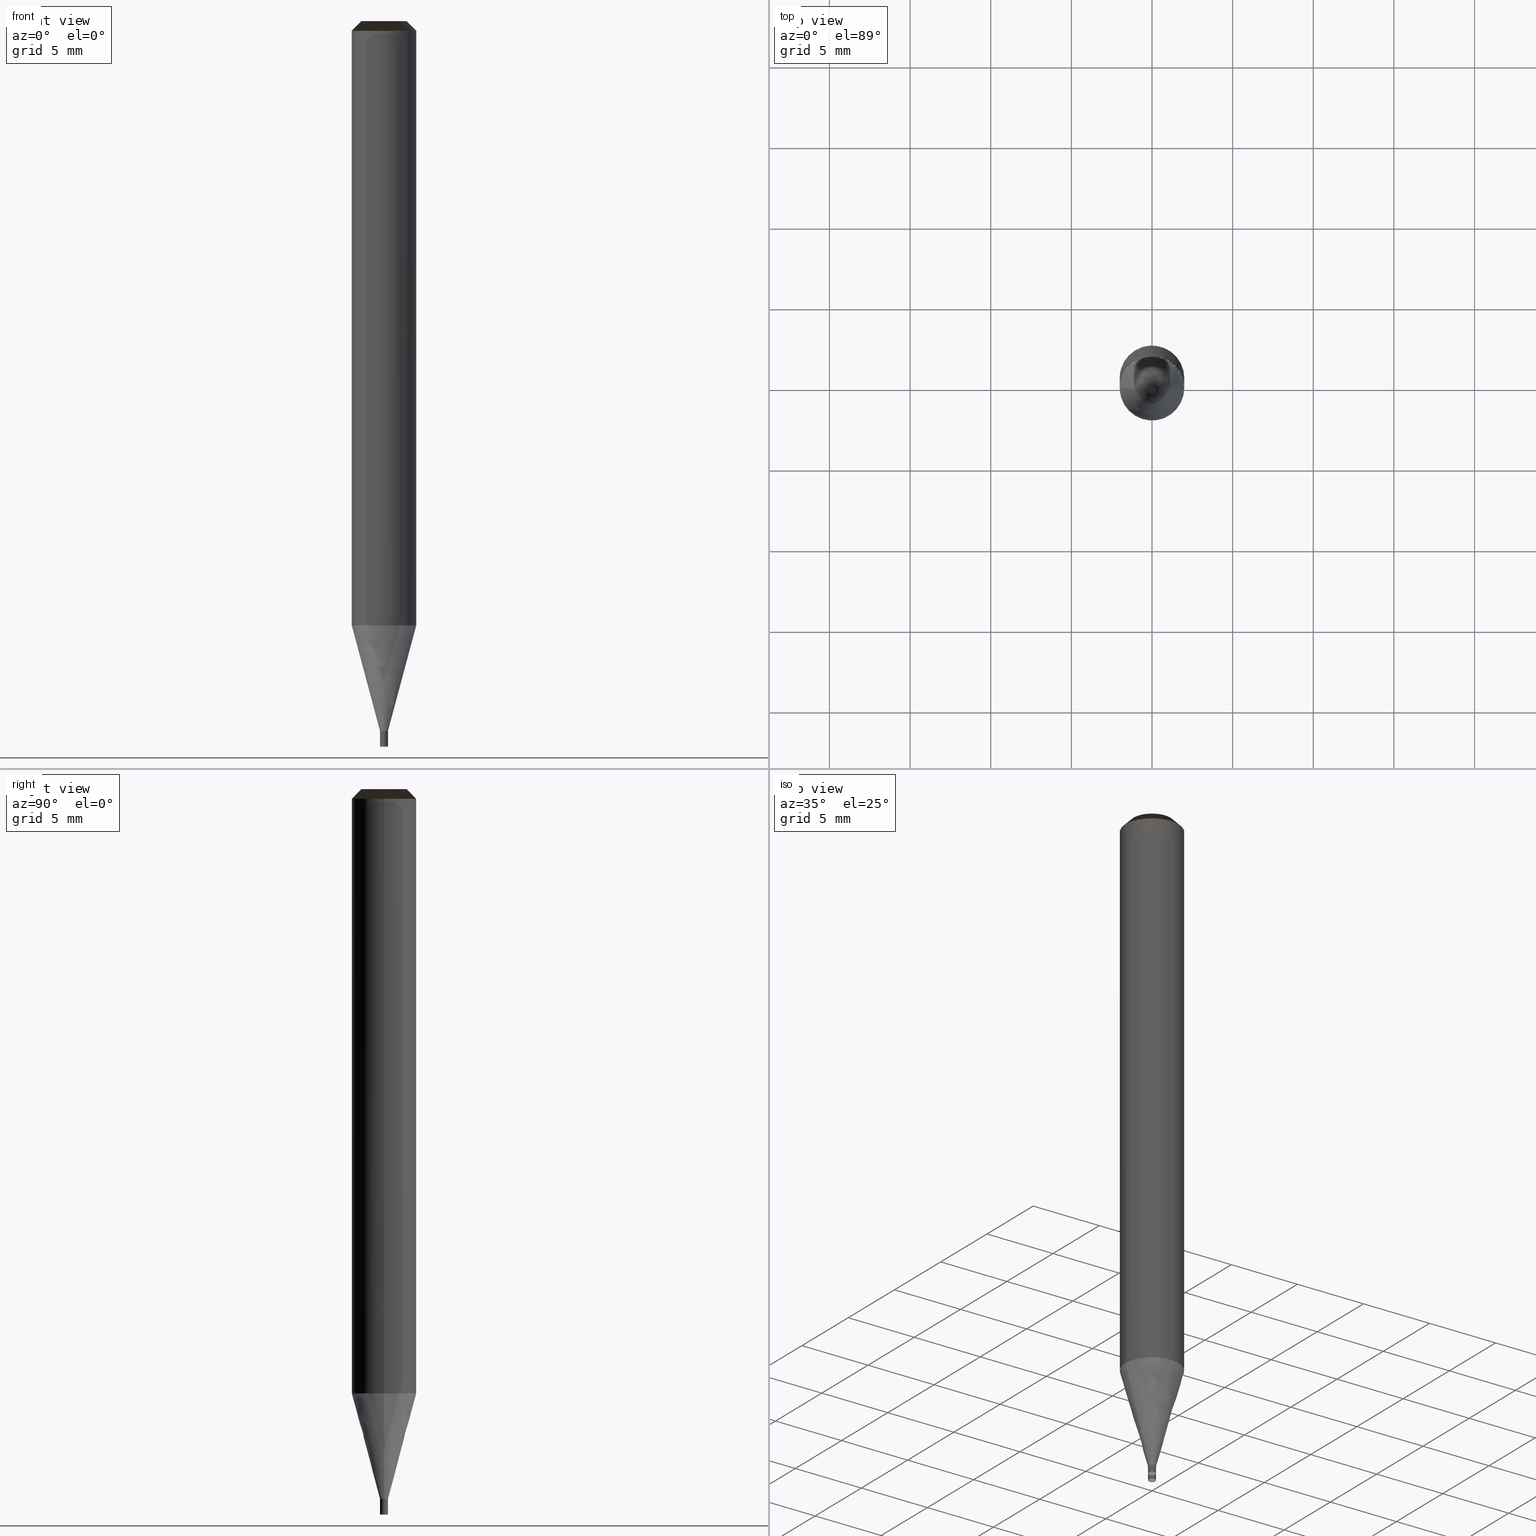
[diagram: canonical four-view strip — front | top / right | iso, engineering-drawing reading convention]
A machine part, canonical four-view strip (front | top / right | iso — engineering-drawing reading convention). The complete STEP part file that produces these views, byte-faithful:
ISO-10303-21;
HEADER;
/* Generated by ISBE GmbH (www.isbe.de) */
/* OPTION: using custom schema-name function */

FILE_DESCRIPTION(
/* description */ (''),
/* implementation_level */ '2;1');

FILE_NAME(
/*name*/ 'SHRN-2005-R0005-010-STH',
/*time_stamp*/'2023-9-18T8:7:38',
/*author*/ ('ISBE GmbH'),
/*organization*/ ('ISBE GmbH'),
/*preprocessor_version*/ 'STEP IO v1.0',
/*originating_system*/ '',
/*authorisation*/ '');

FILE_SCHEMA (('AUTOMOTIVE_DESIGN'));
ENDSEC;

DATA;
#10=SHAPE_DEFINITION_REPRESENTATION(#11,#57);
#11=PRODUCT_DEFINITION_SHAPE('Document','',#13);
#12=PRODUCT_DEFINITION_CONTEXT('3D Mechanical Parts',#17,'design');
#13=PRODUCT_DEFINITION('A','First version',#14,#12);
#14=PRODUCT_DEFINITION_FORMATION_WITH_SPECIFIED_SOURCE('A','First version',#19,.MADE.);
#15=PRODUCT_RELATED_PRODUCT_CATEGORY('tool','tool',(#19));
#16=APPLICATION_PROTOCOL_DEFINITION('Draft International Standard', 'automotive_design',1999,#17);
#17=APPLICATION_CONTEXT('data for automotive mechanical design processes');
#18=PRODUCT_CONTEXT('3D Mechanical Parts',#17,'mechanical');
#19=PRODUCT('Document','Document','ISBE converted to STEP',(#18));
#20=(
LENGTH_UNIT()
NAMED_UNIT(*)
SI_UNIT(.MILLI.,.METRE.)
);
#21=(
NAMED_UNIT(*)
PLANE_ANGLE_UNIT()
SI_UNIT($,.RADIAN.)
);
#22=DIMENSIONAL_EXPONENTS(0.,0.,0.,0.,0.,0.,0.);
#23=PLANE_ANGLE_MEASURE_WITH_UNIT(PLANE_ANGLE_MEASURE(0.01745329252),#21);
#24=(
CONVERSION_BASED_UNIT('DEGREES',#23)
NAMED_UNIT(#22)
PLANE_ANGLE_UNIT()
);
#25=(
NAMED_UNIT(*)
SI_UNIT($,.STERADIAN.)
SOLID_ANGLE_UNIT()
);
#26=UNCERTAINTY_MEASURE_WITH_UNIT(LENGTH_MEASURE(0.001),#20, 'DISTANCE_ACCURACY_VALUE', 'Maximum model space distance between geometric entities at asserted connectivities');
#27=(
GEOMETRIC_REPRESENTATION_CONTEXT(3)
GLOBAL_UNCERTAINTY_ASSIGNED_CONTEXT((#26))
GLOBAL_UNIT_ASSIGNED_CONTEXT((#25,#24,#20))
REPRESENTATION_CONTEXT('ID1','3D')
);
#28=CARTESIAN_POINT('',(0.0,0.0,0.0));
#29=DIRECTION('',(1.0,0.0,0.0));
#30=DIRECTION('',(0.0,0.0,1.0));
#31=AXIS2_PLACEMENT_3D('',#28,#30,#29);
#32=CARTESIAN_POINT('',(0.0,0.0,0.0));
#33=DIRECTION('',(1.0,0.0,0.0));
#34=DIRECTION('',(0.0,0.0,1.0));
#35=AXIS2_PLACEMENT_3D('',#32,#34,#33);
#36=CARTESIAN_POINT('',(0.0,0.0,0.0));
#37=DIRECTION('',(1.0,0.0,0.0));
#38=DIRECTION('',(0.0,0.0,1.0));
#39=AXIS2_PLACEMENT_3D('',#36,#38,#37);
#40=CARTESIAN_POINT('',(0.0,0.0,0.0));
#41=DIRECTION('',(0.0,0.0,1.0));
#42=DIRECTION('',(1.0,0.0,0.0));
#43=AXIS2_PLACEMENT_3D('MCS',#40,#42,#41);
#44=CARTESIAN_POINT('',(0.0,0.0,37.469));
#45=DIRECTION('',(0.0,0.0,1.0));
#46=DIRECTION('',(1.0,0.0,0.0));
#47=AXIS2_PLACEMENT_3D('PCS',#44,#46,#45);
#48=CARTESIAN_POINT('',(0.0,0.0,-7.531));
#49=DIRECTION('',(0.0,0.0,1.0));
#50=DIRECTION('',(1.0,0.0,0.0));
#51=AXIS2_PLACEMENT_3D('CIP',#48,#50,#49);
#52=CARTESIAN_POINT('',(0.0,-0.25,-7.531));
#53=DIRECTION('',(0.0,0.0,1.0));
#54=DIRECTION('',(1.0,0.0,0.0));
#55=AXIS2_PLACEMENT_3D('CRP',#52,#54,#53);
#57=SHAPE_REPRESENTATION('Document',(#31,#35,#39,#43,#47,#51,#55),#27);
#58=DIRECTION('',(1.0,0.0,0.0));
#59=DIRECTION('',(0.0,0.0,1.0));
#60=CARTESIAN_POINT('',(-0.002499874997,-0.000025,-7.531));
#61=CARTESIAN_POINT('',(-0.002384914871,-0.011520437733,-7.531));
#62=CARTESIAN_POINT('',(-0.002265912774,-0.023420052461,-7.531));
#63=CARTESIAN_POINT('',(-0.00214782035,-0.035228704322,-7.531));
#64=CARTESIAN_POINT('',(-0.002029951293,-0.047015020682,-7.531));
#65=CARTESIAN_POINT('',(-0.001912171193,-0.058792441808,-7.531));
#66=CARTESIAN_POINT('',(-0.001794435491,-0.070565423284,-7.531));
#67=CARTESIAN_POINT('',(-0.001676725137,-0.082335870149,-7.531));
#68=CARTESIAN_POINT('',(-0.001559030616,-0.094104733735,-7.531));
#69=CARTESIAN_POINT('',(-0.001441346647,-0.105872542164,-7.531));
#70=CARTESIAN_POINT('',(-0.001323670064,-0.117639612152,-7.531));
#71=CARTESIAN_POINT('',(-0.00120599885,-0.129406145183,-7.531));
#72=CARTESIAN_POINT('',(-0.001088331663,-0.141172275543,-7.531));
#73=CARTESIAN_POINT('',(-0.000970667573,-0.152938096185,-7.531));
#74=CARTESIAN_POINT('',(-0.000853005916,-0.164703673494,-7.531));
#75=CARTESIAN_POINT('',(-0.000735346207,-0.176469056149,-7.531));
#76=CARTESIAN_POINT('',(-0.000617688079,-0.188234280653,-7.531));
#77=CARTESIAN_POINT('',(-0.000500031253,-0.199999374921,-7.531));
#78=CARTESIAN_POINT('',(-0.00043863203,-0.202706470857,-7.530926670693));
#79=CARTESIAN_POINT('',(-0.00030693055,-0.205405721604,-7.530706897858));
#80=CARTESIAN_POINT('',(-0.000102601358,-0.208089074533,-7.530341326127));
#81=CARTESIAN_POINT('',(0.000176403814,-0.210748448182,-7.529831027786));
#82=CARTESIAN_POINT('',(0.000531818639,-0.213375754174,-7.529177499626));
#83=CARTESIAN_POINT('',(0.000965026704,-0.215962920415,-7.528382658559));
#84=CARTESIAN_POINT('',(0.001477028398,-0.218501915619,-7.527448835991));
#85=CARTESIAN_POINT('',(0.002068410632,-0.22098477516,-7.526378770984));
#86=CARTESIAN_POINT('',(0.002739319812,-0.223403628237,-7.525175602222));
#87=CARTESIAN_POINT('',(0.003489438453,-0.225750726271,-7.523842858808));
#88=CARTESIAN_POINT('',(0.004317965816,-0.228018472463,-7.522384449908));
#89=CARTESIAN_POINT('',(0.00522360287,-0.230199452332,-7.520804653285));
#90=CARTESIAN_POINT('',(0.00620454187,-0.232286465082,-7.519108102756));
#91=CARTESIAN_POINT('',(0.007258460776,-0.23427255556,-7.517299774596));
#92=CARTESIAN_POINT('',(0.008382522693,-0.236151046552,-7.515384972943));
#93=CARTESIAN_POINT('',(0.009573380455,-0.237915571127,-7.513369314239));
#94=CARTESIAN_POINT('',(0.010827186401,-0.239560104717,-7.51125871076));
#95=CARTESIAN_POINT('',(0.012139607364,-0.241078996577,-7.509059353268));
#96=CARTESIAN_POINT('',(0.013505844792,-0.242467000292,-7.506777692859));
#97=CARTESIAN_POINT('',(0.01492065987,-0.243719302948,-7.504420422035));
#98=CARTESIAN_POINT('',(0.016378403468,-0.244831552601,-7.501994455078));
#99=CARTESIAN_POINT('',(0.017873050643,-0.24579988369,-7.499506907767));
#100=CARTESIAN_POINT('',(0.019398239382,-0.246620940037,-7.496965076507));
#101=CARTESIAN_POINT('',(0.020947313227,-0.247291895114,-7.494376416926));
#102=CARTESIAN_POINT('',(0.022513367328,-0.247810469271,-7.491748522011));
#103=CARTESIAN_POINT('',(0.024089297489,-0.248174943661,-7.489089099828));
#104=CARTESIAN_POINT('',(0.025667851649,-0.24838417065,-7.486405950921));
#105=CARTESIAN_POINT('',(0.027241683294,-0.24843758052,-7.483706945429));
#106=CARTESIAN_POINT('',(0.028803406183,-0.248335184362,-7.481));
#107=CARTESIAN_POINT('',(0.071170607589,-0.239655470656,-7.406));
#108=CARTESIAN_POINT('',(0.111408023228,-0.223804049026,-7.331));
#109=CARTESIAN_POINT('',(0.14831154542,-0.201255274453,-7.256));
#110=CARTESIAN_POINT('',(0.180776833499,-0.172683920705,-7.181));
#111=CARTESIAN_POINT('',(0.207832361284,-0.138944987686,-7.106));
#112=CARTESIAN_POINT('',(0.228668490079,-0.101048115496,-7.031));
#113=CARTESIAN_POINT('',(0.002499874997,0.000025,-7.531));
#114=CARTESIAN_POINT('',(0.002384914871,0.011520437733,-7.531));
#115=CARTESIAN_POINT('',(0.002265912774,0.023420052461,-7.531));
#116=CARTESIAN_POINT('',(0.00214782035,0.035228704322,-7.531));
#117=CARTESIAN_POINT('',(0.002029951293,0.047015020682,-7.531));
#118=CARTESIAN_POINT('',(0.001912171193,0.058792441808,-7.531));
#119=CARTESIAN_POINT('',(0.001794435491,0.070565423284,-7.531));
#120=CARTESIAN_POINT('',(0.001676725137,0.082335870149,-7.531));
#121=CARTESIAN_POINT('',(0.001559030616,0.094104733735,-7.531));
#122=CARTESIAN_POINT('',(0.001441346647,0.105872542164,-7.531));
#123=CARTESIAN_POINT('',(0.001323670064,0.117639612152,-7.531));
#124=CARTESIAN_POINT('',(0.00120599885,0.129406145183,-7.531));
#125=CARTESIAN_POINT('',(0.001088331663,0.141172275543,-7.531));
#126=CARTESIAN_POINT('',(0.000970667573,0.152938096185,-7.531));
#127=CARTESIAN_POINT('',(0.000853005916,0.164703673494,-7.531));
#128=CARTESIAN_POINT('',(0.000735346207,0.176469056149,-7.531));
#129=CARTESIAN_POINT('',(0.000617688079,0.188234280653,-7.531));
#130=CARTESIAN_POINT('',(0.000500031253,0.199999374921,-7.531));
#131=CARTESIAN_POINT('',(0.00043863203,0.202706470857,-7.530926670693));
#132=CARTESIAN_POINT('',(0.00030693055,0.205405721604,-7.530706897858));
#133=CARTESIAN_POINT('',(0.000102601358,0.208089074533,-7.530341326127));
#134=CARTESIAN_POINT('',(-0.000176403814,0.210748448182,-7.529831027786));
#135=CARTESIAN_POINT('',(-0.000531818639,0.213375754174,-7.529177499626));
#136=CARTESIAN_POINT('',(-0.000965026704,0.215962920415,-7.528382658559));
#137=CARTESIAN_POINT('',(-0.001477028398,0.218501915619,-7.527448835991));
#138=CARTESIAN_POINT('',(-0.002068410632,0.22098477516,-7.526378770984));
#139=CARTESIAN_POINT('',(-0.002739319812,0.223403628237,-7.525175602222));
#140=CARTESIAN_POINT('',(-0.003489438453,0.225750726271,-7.523842858808));
#141=CARTESIAN_POINT('',(-0.004317965816,0.228018472463,-7.522384449908));
#142=CARTESIAN_POINT('',(-0.00522360287,0.230199452332,-7.520804653285));
#143=CARTESIAN_POINT('',(-0.00620454187,0.232286465082,-7.519108102756));
#144=CARTESIAN_POINT('',(-0.007258460776,0.23427255556,-7.517299774596));
#145=CARTESIAN_POINT('',(-0.008382522693,0.236151046552,-7.515384972943));
#146=CARTESIAN_POINT('',(-0.009573380455,0.237915571127,-7.513369314239));
#147=CARTESIAN_POINT('',(-0.010827186401,0.239560104717,-7.51125871076));
#148=CARTESIAN_POINT('',(-0.012139607364,0.241078996577,-7.509059353268));
#149=CARTESIAN_POINT('',(-0.013505844792,0.242467000292,-7.506777692859));
#150=CARTESIAN_POINT('',(-0.01492065987,0.243719302948,-7.504420422035));
#151=CARTESIAN_POINT('',(-0.016378403468,0.244831552601,-7.501994455078));
#152=CARTESIAN_POINT('',(-0.017873050643,0.24579988369,-7.499506907767));
#153=CARTESIAN_POINT('',(-0.019398239382,0.246620940037,-7.496965076507));
#154=CARTESIAN_POINT('',(-0.020947313227,0.247291895114,-7.494376416926));
#155=CARTESIAN_POINT('',(-0.022513367328,0.247810469271,-7.491748522011));
#156=CARTESIAN_POINT('',(-0.024089297489,0.248174943661,-7.489089099828));
#157=CARTESIAN_POINT('',(-0.025667851649,0.24838417065,-7.486405950921));
#158=CARTESIAN_POINT('',(-0.027241683294,0.24843758052,-7.483706945429));
#159=CARTESIAN_POINT('',(-0.028803406183,0.248335184362,-7.481));
#160=CARTESIAN_POINT('',(-0.071170607589,0.239655470656,-7.406));
#161=CARTESIAN_POINT('',(-0.111408023228,0.223804049026,-7.331));
#162=CARTESIAN_POINT('',(-0.14831154542,0.201255274453,-7.256));
#163=CARTESIAN_POINT('',(-0.180776833499,0.172683920705,-7.181));
#164=CARTESIAN_POINT('',(-0.207832361284,0.138944987686,-7.106));
#165=CARTESIAN_POINT('',(-0.228668490079,0.101048115496,-7.031));
#166=CARTESIAN_POINT('',(0.0,0.0,-7.531));
#167=CARTESIAN_POINT('',(0.2,0.0,-7.531));
#168=CARTESIAN_POINT('',(0.2,0.2,-7.531));
#169=CARTESIAN_POINT('',(0.0,0.2,-7.531));
#170=CARTESIAN_POINT('',(-0.2,0.2,-7.531));
#171=CARTESIAN_POINT('',(-0.2,0.0,-7.531));
#172=CARTESIAN_POINT('',(0.220710678119,0.0,-7.531));
#173=CARTESIAN_POINT('',(0.220710678119,0.220710678119,-7.531));
#174=CARTESIAN_POINT('',(0.0,0.220710678119,-7.531));
#175=CARTESIAN_POINT('',(-0.220710678119,0.220710678119,-7.531));
#176=CARTESIAN_POINT('',(-0.220710678119,0.0,-7.531));
#177=CARTESIAN_POINT('',(0.235355339059,0.0,-7.516355339059));
#178=CARTESIAN_POINT('',(0.235355339059,0.235355339059,-7.516355339059));
#179=CARTESIAN_POINT('',(0.0,0.235355339059,-7.516355339059));
#180=CARTESIAN_POINT('',(-0.235355339059,0.235355339059,-7.516355339059));
#181=CARTESIAN_POINT('',(-0.235355339059,0.0,-7.516355339059));
#182=CARTESIAN_POINT('',(0.25,0.0,-7.501710678119));
#183=CARTESIAN_POINT('',(0.25,0.25,-7.501710678119));
#184=CARTESIAN_POINT('',(0.0,0.25,-7.501710678119));
#185=CARTESIAN_POINT('',(-0.25,0.25,-7.501710678119));
#186=CARTESIAN_POINT('',(-0.25,0.0,-7.501710678119));
#187=CARTESIAN_POINT('',(0.25,0.0,-7.481));
#188=CARTESIAN_POINT('',(0.25,0.25,-7.481));
#189=CARTESIAN_POINT('',(0.0,0.25,-7.481));
#190=CARTESIAN_POINT('',(-0.25,0.25,-7.481));
#191=CARTESIAN_POINT('',(-0.25,0.0,-7.481));
#192=CARTESIAN_POINT('',(0.25,0.0,-7.031));
#193=CARTESIAN_POINT('',(0.25,0.25,-7.031));
#194=CARTESIAN_POINT('',(0.0,0.25,-7.031));
#195=CARTESIAN_POINT('',(-0.25,0.25,-7.031));
#196=CARTESIAN_POINT('',(-0.25,0.0,-7.031));
#197=CARTESIAN_POINT('',(0.0,0.0,-7.031));
#198=CARTESIAN_POINT('',(-0.2,-0.2,-7.531));
#199=CARTESIAN_POINT('',(0.0,-0.2,-7.531));
#200=CARTESIAN_POINT('',(0.2,-0.2,-7.531));
#201=CARTESIAN_POINT('',(-0.220710678119,-0.220710678119,-7.531));
#202=CARTESIAN_POINT('',(0.0,-0.220710678119,-7.531));
#203=CARTESIAN_POINT('',(0.220710678119,-0.220710678119,-7.531));
#204=CARTESIAN_POINT('',(-0.235355339059,-0.235355339059,-7.516355339059));
#205=CARTESIAN_POINT('',(0.0,-0.235355339059,-7.516355339059));
#206=CARTESIAN_POINT('',(0.235355339059,-0.235355339059,-7.516355339059));
#207=CARTESIAN_POINT('',(-0.25,-0.25,-7.501710678119));
#208=CARTESIAN_POINT('',(0.0,-0.25,-7.501710678119));
#209=CARTESIAN_POINT('',(0.25,-0.25,-7.501710678119));
#210=CARTESIAN_POINT('',(-0.25,-0.25,-7.481));
#211=CARTESIAN_POINT('',(0.0,-0.25,-7.481));
#212=CARTESIAN_POINT('',(0.25,-0.25,-7.481));
#213=CARTESIAN_POINT('',(-0.25,-0.25,-7.031));
#214=CARTESIAN_POINT('',(0.0,-0.25,-7.031));
#215=CARTESIAN_POINT('',(0.25,-0.25,-7.031));
#216=CARTESIAN_POINT('',(0.25,0.0,-6.531088913246));
#217=CARTESIAN_POINT('',(0.25,0.25,-6.531088913246));
#218=CARTESIAN_POINT('',(0.0,0.25,-6.531088913246));
#219=CARTESIAN_POINT('',(-0.25,0.25,-6.531088913246));
#220=CARTESIAN_POINT('',(-0.25,0.0,-6.531088913246));
#221=CARTESIAN_POINT('',(2.0,0.0,0.0));
#222=CARTESIAN_POINT('',(2.0,2.0,0.0));
#223=CARTESIAN_POINT('',(0.0,2.0,0.0));
#224=CARTESIAN_POINT('',(-2.0,2.0,0.0));
#225=CARTESIAN_POINT('',(-2.0,0.0,0.0));
#226=CARTESIAN_POINT('',(2.0,0.0,36.869));
#227=CARTESIAN_POINT('',(2.0,2.0,36.869));
#228=CARTESIAN_POINT('',(0.0,2.0,36.869));
#229=CARTESIAN_POINT('',(-2.0,2.0,36.869));
#230=CARTESIAN_POINT('',(-2.0,0.0,36.869));
#231=CARTESIAN_POINT('',(1.4,0.0,37.469));
#232=CARTESIAN_POINT('',(1.4,1.4,37.469));
#233=CARTESIAN_POINT('',(0.0,1.4,37.469));
#234=CARTESIAN_POINT('',(-1.4,1.4,37.469));
#235=CARTESIAN_POINT('',(-1.4,0.0,37.469));
#236=CARTESIAN_POINT('',(0.0,0.0,37.469));
#237=CARTESIAN_POINT('',(-0.25,-0.25,-6.531088913246));
#238=CARTESIAN_POINT('',(0.0,-0.25,-6.531088913246));
#239=CARTESIAN_POINT('',(0.25,-0.25,-6.531088913246));
#240=CARTESIAN_POINT('',(-2.0,-2.0,0.0));
#241=CARTESIAN_POINT('',(0.0,-2.0,0.0));
#242=CARTESIAN_POINT('',(2.0,-2.0,0.0));
#243=CARTESIAN_POINT('',(-2.0,-2.0,36.869));
#244=CARTESIAN_POINT('',(0.0,-2.0,36.869));
#245=CARTESIAN_POINT('',(2.0,-2.0,36.869));
#246=CARTESIAN_POINT('',(-1.4,-1.4,37.469));
#247=CARTESIAN_POINT('',(0.0,-1.4,37.469));
#248=CARTESIAN_POINT('',(1.4,-1.4,37.469));
#249=(
BOUNDED_CURVE()
B_SPLINE_CURVE(1,(#60,#61,#62,#63,#64,#65,#66,#67,#68,#69,#70,#71,#72,#73,#74,#75,#76,#77,#78,#79,#80,#81,#82,#83,#84,#85,#86,#87,#88,#89,#90,#91,#92,#93,#94,#95,#96,#97,#98,#99,#100,#101,#102,#103,#104,#105,#106,#107,#108,#109,#110,#111,#112),.UNSPECIFIED.,.F.,.F.)
B_SPLINE_CURVE_WITH_KNOTS((2,1,1,1,1,1,1,1,1,1,1,1,1,1,1,1,1,1,1,1,1,1,1,1,1,1,1,1,1,1,1,1,1,1,1,1,1,1,1,1,1,1,1,1,1,1,1,1,1,1,1,1,2),
(0.0,0.01429975865,0.029102293586,0.043791675192,0.058453272535,0.073103804645,0.087748814048,0.102390670521,0.117030557472,0.131669131859,0.146306787664,0.160943775519,0.175580262471,0.19021636415,0.204852163135,0.219487719979,0.234123080091,0.248758278196,0.252127704741,0.255500363578,0.258878563436,0.262264709731,0.265661267125,0.269070717988,0.272495517771,0.275938048463,0.279400571426,0.282885180941,0.286393759762,0.289927937916,0.293489055831,0.297078132696,0.300695840776,0.304342486177,0.308017996349,0.311721914447,0.315453400472,0.319211238989,0.322993853085,0.326799324173,0.330625417124,0.334469610218,0.338329129334,0.342200985794,0.34608201726,0.349968931075,0.35385834945,0.461548624542,0.569238899633,0.676929174725,0.784619449817,0.892309724908,1.0),.UNSPECIFIED.)
CURVE()
GEOMETRIC_REPRESENTATION_ITEM()
RATIONAL_B_SPLINE_CURVE((1.0,1.0,1.0,1.0,1.0,1.0,1.0,1.0,1.0,1.0,1.0,1.0,1.0,1.0,1.0,1.0,1.0,1.0,1.0,1.0,1.0,1.0,1.0,1.0,1.0,1.0,1.0,1.0,1.0,1.0,1.0,1.0,1.0,1.0,1.0,1.0,1.0,1.0,1.0,1.0,1.0,1.0,1.0,1.0,1.0,1.0,1.0,1.0,1.0,1.0,1.0,1.0,1.0))
REPRESENTATION_ITEM('')
);
#250=(
BOUNDED_CURVE()
B_SPLINE_CURVE(1,(#113,#114,#115,#116,#117,#118,#119,#120,#121,#122,#123,#124,#125,#126,#127,#128,#129,#130,#131,#132,#133,#134,#135,#136,#137,#138,#139,#140,#141,#142,#143,#144,#145,#146,#147,#148,#149,#150,#151,#152,#153,#154,#155,#156,#157,#158,#159,#160,#161,#162,#163,#164,#165),.UNSPECIFIED.,.F.,.F.)
B_SPLINE_CURVE_WITH_KNOTS((2,1,1,1,1,1,1,1,1,1,1,1,1,1,1,1,1,1,1,1,1,1,1,1,1,1,1,1,1,1,1,1,1,1,1,1,1,1,1,1,1,1,1,1,1,1,1,1,1,1,1,1,2),
(0.0,0.01429975865,0.029102293586,0.043791675192,0.058453272535,0.073103804645,0.087748814048,0.102390670521,0.117030557472,0.131669131859,0.146306787664,0.160943775519,0.175580262471,0.19021636415,0.204852163135,0.219487719979,0.234123080091,0.248758278196,0.252127704741,0.255500363578,0.258878563436,0.262264709731,0.265661267125,0.269070717988,0.272495517771,0.275938048463,0.279400571426,0.282885180941,0.286393759762,0.289927937916,0.293489055831,0.297078132696,0.300695840776,0.304342486177,0.308017996349,0.311721914447,0.315453400472,0.319211238989,0.322993853085,0.326799324173,0.330625417124,0.334469610218,0.338329129334,0.342200985794,0.34608201726,0.349968931075,0.35385834945,0.461548624542,0.569238899633,0.676929174725,0.784619449817,0.892309724908,1.0),.UNSPECIFIED.)
CURVE()
GEOMETRIC_REPRESENTATION_ITEM()
RATIONAL_B_SPLINE_CURVE((1.0,1.0,1.0,1.0,1.0,1.0,1.0,1.0,1.0,1.0,1.0,1.0,1.0,1.0,1.0,1.0,1.0,1.0,1.0,1.0,1.0,1.0,1.0,1.0,1.0,1.0,1.0,1.0,1.0,1.0,1.0,1.0,1.0,1.0,1.0,1.0,1.0,1.0,1.0,1.0,1.0,1.0,1.0,1.0,1.0,1.0,1.0,1.0,1.0,1.0,1.0,1.0,1.0))
REPRESENTATION_ITEM('')
);
#251=SHAPE_REPRESENTATION_RELATIONSHIP('','',#57,#252);
#252=GEOMETRICALLY_BOUNDED_WIREFRAME_SHAPE_REPRESENTATION('Curves',(#253,#31),#27);
#253=GEOMETRIC_CURVE_SET('CurveSet',(#249,#250));
#254=(
BOUNDED_SURFACE()
B_SPLINE_SURFACE(1,2,(
(#166,#166,#166,#166,#166),
(#167,#168,#169,#170,#171)
), .UNSPECIFIED.,.F.,.F.,.F.)
B_SPLINE_SURFACE_WITH_KNOTS((2,2),(3,2,3),(
0.0,1.0),(
0.0,0.5,1.0), .UNSPECIFIED.)
GEOMETRIC_REPRESENTATION_ITEM()
RATIONAL_B_SPLINE_SURFACE(((1.0,0.707106781187,1.0,0.707106781187,1.0),
(1.0,0.707106781187,1.0,0.707106781187,1.0)
))
REPRESENTATION_ITEM('')
SURFACE()
);
#255=(
BOUNDED_CURVE()
B_SPLINE_CURVE(2,(#167,#168,#169,#170,#171),.UNSPECIFIED.,.F.,.F.)
B_SPLINE_CURVE_WITH_KNOTS((3,2,3),
(0.0,0.5,1.0),.UNSPECIFIED.)
CURVE()
GEOMETRIC_REPRESENTATION_ITEM()
RATIONAL_B_SPLINE_CURVE((1.0,0.707106781187,1.0,0.707106781187,1.0))
REPRESENTATION_ITEM('')
);
#256=(
BOUNDED_CURVE()
B_SPLINE_CURVE(1,(#171,#166),.UNSPECIFIED.,.F.,.F.)
B_SPLINE_CURVE_WITH_KNOTS((2,2),
(0.0,1.0),.UNSPECIFIED.)
CURVE()
GEOMETRIC_REPRESENTATION_ITEM()
RATIONAL_B_SPLINE_CURVE((1.0,1.0))
REPRESENTATION_ITEM('')
);
#257=(
BOUNDED_CURVE()
B_SPLINE_CURVE(1,(#166,#167),.UNSPECIFIED.,.F.,.F.)
B_SPLINE_CURVE_WITH_KNOTS((2,2),
(0.0,1.0),.UNSPECIFIED.)
CURVE()
GEOMETRIC_REPRESENTATION_ITEM()
RATIONAL_B_SPLINE_CURVE((1.0,1.0))
REPRESENTATION_ITEM('')
);
#258=VERTEX_POINT('',#166);
#259=VERTEX_POINT('',#167);
#260=VERTEX_POINT('',#171);
#261=EDGE_CURVE('',#259,#260,#255,.T.);
#262=EDGE_CURVE('',#260,#258,#256,.T.);
#263=EDGE_CURVE('',#258,#259,#257,.T.);
#264=ORIENTED_EDGE('',*,*,#261,.T.);
#265=ORIENTED_EDGE('',*,*,#262,.T.);
#266=ORIENTED_EDGE('',*,*,#263,.T.);
#267=EDGE_LOOP('',(#264,#265,#266));
#268=FACE_OUTER_BOUND('',#267,.T.);
#269=ADVANCED_FACE('',(#268),#254,.T.);
#270=(
BOUNDED_SURFACE()
B_SPLINE_SURFACE(2,2,(
(#167,#168,#169,#170,#171),
(#172,#173,#174,#175,#176),
(#177,#178,#179,#180,#181),
(#182,#183,#184,#185,#186),
(#187,#188,#189,#190,#191)
), .UNSPECIFIED.,.F.,.F.,.F.)
B_SPLINE_SURFACE_WITH_KNOTS((3,2,3),(3,2,3),(
0.0,0.5,1.0),(
0.0,0.5,1.0), .UNSPECIFIED.)
GEOMETRIC_REPRESENTATION_ITEM()
RATIONAL_B_SPLINE_SURFACE(((1.0,0.707106781187,1.0,0.707106781187,1.0),
(0.923879532511,0.653281482438,0.923879532511,0.653281482438,0.923879532511),
(1.0,0.707106781187,1.0,0.707106781187,1.0),
(0.923879532511,0.653281482438,0.923879532511,0.653281482438,0.923879532511),
(1.0,0.707106781187,1.0,0.707106781187,1.0)
))
REPRESENTATION_ITEM('')
SURFACE()
);
#271=(
BOUNDED_CURVE()
B_SPLINE_CURVE(2,(#187,#188,#189,#190,#191),.UNSPECIFIED.,.F.,.F.)
B_SPLINE_CURVE_WITH_KNOTS((3,2,3),
(0.0,0.5,1.0),.UNSPECIFIED.)
CURVE()
GEOMETRIC_REPRESENTATION_ITEM()
RATIONAL_B_SPLINE_CURVE((1.0,0.707106781187,1.0,0.707106781187,1.0))
REPRESENTATION_ITEM('')
);
#272=(
BOUNDED_CURVE()
B_SPLINE_CURVE(2,(#191,#186,#181,#176,#171),.UNSPECIFIED.,.F.,.F.)
B_SPLINE_CURVE_WITH_KNOTS((3,2,3),
(0.0,0.5,1.0),.UNSPECIFIED.)
CURVE()
GEOMETRIC_REPRESENTATION_ITEM()
RATIONAL_B_SPLINE_CURVE((1.0,0.923879532511,1.0,0.923879532511,1.0))
REPRESENTATION_ITEM('')
);
#273=(
BOUNDED_CURVE()
B_SPLINE_CURVE(2,(#171,#170,#169,#168,#167),.UNSPECIFIED.,.F.,.F.)
B_SPLINE_CURVE_WITH_KNOTS((3,2,3),
(0.0,0.5,1.0),.UNSPECIFIED.)
CURVE()
GEOMETRIC_REPRESENTATION_ITEM()
RATIONAL_B_SPLINE_CURVE((1.0,0.707106781187,1.0,0.707106781187,1.0))
REPRESENTATION_ITEM('')
);
#274=(
BOUNDED_CURVE()
B_SPLINE_CURVE(2,(#167,#172,#177,#182,#187),.UNSPECIFIED.,.F.,.F.)
B_SPLINE_CURVE_WITH_KNOTS((3,2,3),
(0.0,0.5,1.0),.UNSPECIFIED.)
CURVE()
GEOMETRIC_REPRESENTATION_ITEM()
RATIONAL_B_SPLINE_CURVE((1.0,0.923879532511,1.0,0.923879532511,1.0))
REPRESENTATION_ITEM('')
);
#275=VERTEX_POINT('',#167);
#276=VERTEX_POINT('',#171);
#277=VERTEX_POINT('',#187);
#278=VERTEX_POINT('',#191);
#279=EDGE_CURVE('',#277,#278,#271,.T.);
#280=EDGE_CURVE('',#278,#276,#272,.T.);
#281=EDGE_CURVE('',#276,#275,#273,.T.);
#282=EDGE_CURVE('',#275,#277,#274,.T.);
#283=ORIENTED_EDGE('',*,*,#279,.T.);
#284=ORIENTED_EDGE('',*,*,#280,.T.);
#285=ORIENTED_EDGE('',*,*,#281,.T.);
#286=ORIENTED_EDGE('',*,*,#282,.T.);
#287=EDGE_LOOP('',(#283,#284,#285,#286));
#288=FACE_OUTER_BOUND('',#287,.T.);
#289=ADVANCED_FACE('',(#288),#270,.T.);
#290=(
BOUNDED_SURFACE()
B_SPLINE_SURFACE(1,2,(
(#187,#188,#189,#190,#191),
(#192,#193,#194,#195,#196)
), .UNSPECIFIED.,.F.,.F.,.F.)
B_SPLINE_SURFACE_WITH_KNOTS((2,2),(3,2,3),(
0.0,1.0),(
0.0,0.5,1.0), .UNSPECIFIED.)
GEOMETRIC_REPRESENTATION_ITEM()
RATIONAL_B_SPLINE_SURFACE(((1.0,0.707106781187,1.0,0.707106781187,1.0),
(1.0,0.707106781187,1.0,0.707106781187,1.0)
))
REPRESENTATION_ITEM('')
SURFACE()
);
#291=(
BOUNDED_CURVE()
B_SPLINE_CURVE(2,(#192,#193,#194,#195,#196),.UNSPECIFIED.,.F.,.F.)
B_SPLINE_CURVE_WITH_KNOTS((3,2,3),
(0.0,0.5,1.0),.UNSPECIFIED.)
CURVE()
GEOMETRIC_REPRESENTATION_ITEM()
RATIONAL_B_SPLINE_CURVE((1.0,0.707106781187,1.0,0.707106781187,1.0))
REPRESENTATION_ITEM('')
);
#292=(
BOUNDED_CURVE()
B_SPLINE_CURVE(1,(#196,#191),.UNSPECIFIED.,.F.,.F.)
B_SPLINE_CURVE_WITH_KNOTS((2,2),
(0.0,1.0),.UNSPECIFIED.)
CURVE()
GEOMETRIC_REPRESENTATION_ITEM()
RATIONAL_B_SPLINE_CURVE((1.0,1.0))
REPRESENTATION_ITEM('')
);
#293=(
BOUNDED_CURVE()
B_SPLINE_CURVE(2,(#191,#190,#189,#188,#187),.UNSPECIFIED.,.F.,.F.)
B_SPLINE_CURVE_WITH_KNOTS((3,2,3),
(0.0,0.5,1.0),.UNSPECIFIED.)
CURVE()
GEOMETRIC_REPRESENTATION_ITEM()
RATIONAL_B_SPLINE_CURVE((1.0,0.707106781187,1.0,0.707106781187,1.0))
REPRESENTATION_ITEM('')
);
#294=(
BOUNDED_CURVE()
B_SPLINE_CURVE(1,(#187,#192),.UNSPECIFIED.,.F.,.F.)
B_SPLINE_CURVE_WITH_KNOTS((2,2),
(0.0,1.0),.UNSPECIFIED.)
CURVE()
GEOMETRIC_REPRESENTATION_ITEM()
RATIONAL_B_SPLINE_CURVE((1.0,1.0))
REPRESENTATION_ITEM('')
);
#295=VERTEX_POINT('',#187);
#296=VERTEX_POINT('',#191);
#297=VERTEX_POINT('',#192);
#298=VERTEX_POINT('',#196);
#299=EDGE_CURVE('',#297,#298,#291,.T.);
#300=EDGE_CURVE('',#298,#296,#292,.T.);
#301=EDGE_CURVE('',#296,#295,#293,.T.);
#302=EDGE_CURVE('',#295,#297,#294,.T.);
#303=ORIENTED_EDGE('',*,*,#299,.T.);
#304=ORIENTED_EDGE('',*,*,#300,.T.);
#305=ORIENTED_EDGE('',*,*,#301,.T.);
#306=ORIENTED_EDGE('',*,*,#302,.T.);
#307=EDGE_LOOP('',(#303,#304,#305,#306));
#308=FACE_OUTER_BOUND('',#307,.T.);
#309=ADVANCED_FACE('',(#308),#290,.T.);
#310=(
BOUNDED_SURFACE()
B_SPLINE_SURFACE(1,2,(
(#192,#193,#194,#195,#196),
(#197,#197,#197,#197,#197)
), .UNSPECIFIED.,.F.,.F.,.F.)
B_SPLINE_SURFACE_WITH_KNOTS((2,2),(3,2,3),(
0.0,1.0),(
0.0,0.5,1.0), .UNSPECIFIED.)
GEOMETRIC_REPRESENTATION_ITEM()
RATIONAL_B_SPLINE_SURFACE(((1.0,0.707106781187,1.0,0.707106781187,1.0),
(1.0,0.707106781187,1.0,0.707106781187,1.0)
))
REPRESENTATION_ITEM('')
SURFACE()
);
#311=(
BOUNDED_CURVE()
B_SPLINE_CURVE(1,(#197,#192),.UNSPECIFIED.,.F.,.F.)
B_SPLINE_CURVE_WITH_KNOTS((2,2),
(0.0,1.0),.UNSPECIFIED.)
CURVE()
GEOMETRIC_REPRESENTATION_ITEM()
RATIONAL_B_SPLINE_CURVE((1.0,1.0))
REPRESENTATION_ITEM('')
);
#312=(
BOUNDED_CURVE()
B_SPLINE_CURVE(2,(#192,#193,#194,#195,#196),.UNSPECIFIED.,.F.,.F.)
B_SPLINE_CURVE_WITH_KNOTS((3,2,3),
(0.0,0.5,1.0),.UNSPECIFIED.)
CURVE()
GEOMETRIC_REPRESENTATION_ITEM()
RATIONAL_B_SPLINE_CURVE((1.0,0.707106781187,1.0,0.707106781187,1.0))
REPRESENTATION_ITEM('')
);
#313=(
BOUNDED_CURVE()
B_SPLINE_CURVE(1,(#196,#197),.UNSPECIFIED.,.F.,.F.)
B_SPLINE_CURVE_WITH_KNOTS((2,2),
(0.0,1.0),.UNSPECIFIED.)
CURVE()
GEOMETRIC_REPRESENTATION_ITEM()
RATIONAL_B_SPLINE_CURVE((1.0,1.0))
REPRESENTATION_ITEM('')
);
#314=VERTEX_POINT('',#192);
#315=VERTEX_POINT('',#196);
#316=VERTEX_POINT('',#197);
#317=EDGE_CURVE('',#316,#314,#311,.T.);
#318=EDGE_CURVE('',#314,#315,#312,.T.);
#319=EDGE_CURVE('',#315,#316,#313,.T.);
#320=ORIENTED_EDGE('',*,*,#317,.T.);
#321=ORIENTED_EDGE('',*,*,#318,.T.);
#322=ORIENTED_EDGE('',*,*,#319,.T.);
#323=EDGE_LOOP('',(#320,#321,#322));
#324=FACE_OUTER_BOUND('',#323,.T.);
#325=ADVANCED_FACE('',(#324),#310,.T.);
#326=(
BOUNDED_SURFACE()
B_SPLINE_SURFACE(1,2,(
(#166,#166,#166,#166,#166),
(#171,#198,#199,#200,#167)
), .UNSPECIFIED.,.F.,.F.,.F.)
B_SPLINE_SURFACE_WITH_KNOTS((2,2),(3,2,3),(
0.0,1.0),(
0.0,0.5,1.0), .UNSPECIFIED.)
GEOMETRIC_REPRESENTATION_ITEM()
RATIONAL_B_SPLINE_SURFACE(((1.0,0.707106781187,1.0,0.707106781187,1.0),
(1.0,0.707106781187,1.0,0.707106781187,1.0)
))
REPRESENTATION_ITEM('')
SURFACE()
);
#327=(
BOUNDED_CURVE()
B_SPLINE_CURVE(1,(#171,#166),.UNSPECIFIED.,.F.,.F.)
B_SPLINE_CURVE_WITH_KNOTS((2,2),
(0.0,1.0),.UNSPECIFIED.)
CURVE()
GEOMETRIC_REPRESENTATION_ITEM()
RATIONAL_B_SPLINE_CURVE((1.0,1.0))
REPRESENTATION_ITEM('')
);
#328=(
BOUNDED_CURVE()
B_SPLINE_CURVE(1,(#166,#167),.UNSPECIFIED.,.F.,.F.)
B_SPLINE_CURVE_WITH_KNOTS((2,2),
(0.0,1.0),.UNSPECIFIED.)
CURVE()
GEOMETRIC_REPRESENTATION_ITEM()
RATIONAL_B_SPLINE_CURVE((1.0,1.0))
REPRESENTATION_ITEM('')
);
#329=(
BOUNDED_CURVE()
B_SPLINE_CURVE(2,(#167,#200,#199,#198,#171),.UNSPECIFIED.,.F.,.F.)
B_SPLINE_CURVE_WITH_KNOTS((3,2,3),
(0.0,0.5,1.0),.UNSPECIFIED.)
CURVE()
GEOMETRIC_REPRESENTATION_ITEM()
RATIONAL_B_SPLINE_CURVE((1.0,0.707106781187,1.0,0.707106781187,1.0))
REPRESENTATION_ITEM('')
);
#330=VERTEX_POINT('',#166);
#331=VERTEX_POINT('',#167);
#332=VERTEX_POINT('',#171);
#333=EDGE_CURVE('',#332,#330,#327,.T.);
#334=EDGE_CURVE('',#330,#331,#328,.T.);
#335=EDGE_CURVE('',#331,#332,#329,.T.);
#336=ORIENTED_EDGE('',*,*,#333,.T.);
#337=ORIENTED_EDGE('',*,*,#334,.T.);
#338=ORIENTED_EDGE('',*,*,#335,.T.);
#339=EDGE_LOOP('',(#336,#337,#338));
#340=FACE_OUTER_BOUND('',#339,.T.);
#341=ADVANCED_FACE('',(#340),#326,.T.);
#342=(
BOUNDED_SURFACE()
B_SPLINE_SURFACE(2,2,(
(#171,#198,#199,#200,#167),
(#176,#201,#202,#203,#172),
(#181,#204,#205,#206,#177),
(#186,#207,#208,#209,#182),
(#191,#210,#211,#212,#187)
), .UNSPECIFIED.,.F.,.F.,.F.)
B_SPLINE_SURFACE_WITH_KNOTS((3,2,3),(3,2,3),(
0.0,0.5,1.0),(
0.0,0.5,1.0), .UNSPECIFIED.)
GEOMETRIC_REPRESENTATION_ITEM()
RATIONAL_B_SPLINE_SURFACE(((1.0,0.707106781187,1.0,0.707106781187,1.0),
(0.923879532511,0.653281482438,0.923879532511,0.653281482438,0.923879532511),
(1.0,0.707106781187,1.0,0.707106781187,1.0),
(0.923879532511,0.653281482438,0.923879532511,0.653281482438,0.923879532511),
(1.0,0.707106781187,1.0,0.707106781187,1.0)
))
REPRESENTATION_ITEM('')
SURFACE()
);
#343=(
BOUNDED_CURVE()
B_SPLINE_CURVE(2,(#191,#186,#181,#176,#171),.UNSPECIFIED.,.F.,.F.)
B_SPLINE_CURVE_WITH_KNOTS((3,2,3),
(0.0,0.5,1.0),.UNSPECIFIED.)
CURVE()
GEOMETRIC_REPRESENTATION_ITEM()
RATIONAL_B_SPLINE_CURVE((1.0,0.923879532511,1.0,0.923879532511,1.0))
REPRESENTATION_ITEM('')
);
#344=(
BOUNDED_CURVE()
B_SPLINE_CURVE(2,(#171,#198,#199,#200,#167),.UNSPECIFIED.,.F.,.F.)
B_SPLINE_CURVE_WITH_KNOTS((3,2,3),
(0.0,0.5,1.0),.UNSPECIFIED.)
CURVE()
GEOMETRIC_REPRESENTATION_ITEM()
RATIONAL_B_SPLINE_CURVE((1.0,0.707106781187,1.0,0.707106781187,1.0))
REPRESENTATION_ITEM('')
);
#345=(
BOUNDED_CURVE()
B_SPLINE_CURVE(2,(#167,#172,#177,#182,#187),.UNSPECIFIED.,.F.,.F.)
B_SPLINE_CURVE_WITH_KNOTS((3,2,3),
(0.0,0.5,1.0),.UNSPECIFIED.)
CURVE()
GEOMETRIC_REPRESENTATION_ITEM()
RATIONAL_B_SPLINE_CURVE((1.0,0.923879532511,1.0,0.923879532511,1.0))
REPRESENTATION_ITEM('')
);
#346=(
BOUNDED_CURVE()
B_SPLINE_CURVE(2,(#187,#212,#211,#210,#191),.UNSPECIFIED.,.F.,.F.)
B_SPLINE_CURVE_WITH_KNOTS((3,2,3),
(0.0,0.5,1.0),.UNSPECIFIED.)
CURVE()
GEOMETRIC_REPRESENTATION_ITEM()
RATIONAL_B_SPLINE_CURVE((1.0,0.707106781187,1.0,0.707106781187,1.0))
REPRESENTATION_ITEM('')
);
#347=VERTEX_POINT('',#167);
#348=VERTEX_POINT('',#171);
#349=VERTEX_POINT('',#187);
#350=VERTEX_POINT('',#191);
#351=EDGE_CURVE('',#350,#348,#343,.T.);
#352=EDGE_CURVE('',#348,#347,#344,.T.);
#353=EDGE_CURVE('',#347,#349,#345,.T.);
#354=EDGE_CURVE('',#349,#350,#346,.T.);
#355=ORIENTED_EDGE('',*,*,#351,.T.);
#356=ORIENTED_EDGE('',*,*,#352,.T.);
#357=ORIENTED_EDGE('',*,*,#353,.T.);
#358=ORIENTED_EDGE('',*,*,#354,.T.);
#359=EDGE_LOOP('',(#355,#356,#357,#358));
#360=FACE_OUTER_BOUND('',#359,.T.);
#361=ADVANCED_FACE('',(#360),#342,.T.);
#362=(
BOUNDED_SURFACE()
B_SPLINE_SURFACE(1,2,(
(#191,#210,#211,#212,#187),
(#196,#213,#214,#215,#192)
), .UNSPECIFIED.,.F.,.F.,.F.)
B_SPLINE_SURFACE_WITH_KNOTS((2,2),(3,2,3),(
0.0,1.0),(
0.0,0.5,1.0), .UNSPECIFIED.)
GEOMETRIC_REPRESENTATION_ITEM()
RATIONAL_B_SPLINE_SURFACE(((1.0,0.707106781187,1.0,0.707106781187,1.0),
(1.0,0.707106781187,1.0,0.707106781187,1.0)
))
REPRESENTATION_ITEM('')
SURFACE()
);
#363=(
BOUNDED_CURVE()
B_SPLINE_CURVE(1,(#196,#191),.UNSPECIFIED.,.F.,.F.)
B_SPLINE_CURVE_WITH_KNOTS((2,2),
(0.0,1.0),.UNSPECIFIED.)
CURVE()
GEOMETRIC_REPRESENTATION_ITEM()
RATIONAL_B_SPLINE_CURVE((1.0,1.0))
REPRESENTATION_ITEM('')
);
#364=(
BOUNDED_CURVE()
B_SPLINE_CURVE(2,(#191,#210,#211,#212,#187),.UNSPECIFIED.,.F.,.F.)
B_SPLINE_CURVE_WITH_KNOTS((3,2,3),
(0.0,0.5,1.0),.UNSPECIFIED.)
CURVE()
GEOMETRIC_REPRESENTATION_ITEM()
RATIONAL_B_SPLINE_CURVE((1.0,0.707106781187,1.0,0.707106781187,1.0))
REPRESENTATION_ITEM('')
);
#365=(
BOUNDED_CURVE()
B_SPLINE_CURVE(1,(#187,#192),.UNSPECIFIED.,.F.,.F.)
B_SPLINE_CURVE_WITH_KNOTS((2,2),
(0.0,1.0),.UNSPECIFIED.)
CURVE()
GEOMETRIC_REPRESENTATION_ITEM()
RATIONAL_B_SPLINE_CURVE((1.0,1.0))
REPRESENTATION_ITEM('')
);
#366=(
BOUNDED_CURVE()
B_SPLINE_CURVE(2,(#192,#215,#214,#213,#196),.UNSPECIFIED.,.F.,.F.)
B_SPLINE_CURVE_WITH_KNOTS((3,2,3),
(0.0,0.5,1.0),.UNSPECIFIED.)
CURVE()
GEOMETRIC_REPRESENTATION_ITEM()
RATIONAL_B_SPLINE_CURVE((1.0,0.707106781187,1.0,0.707106781187,1.0))
REPRESENTATION_ITEM('')
);
#367=VERTEX_POINT('',#187);
#368=VERTEX_POINT('',#191);
#369=VERTEX_POINT('',#192);
#370=VERTEX_POINT('',#196);
#371=EDGE_CURVE('',#370,#368,#363,.T.);
#372=EDGE_CURVE('',#368,#367,#364,.T.);
#373=EDGE_CURVE('',#367,#369,#365,.T.);
#374=EDGE_CURVE('',#369,#370,#366,.T.);
#375=ORIENTED_EDGE('',*,*,#371,.T.);
#376=ORIENTED_EDGE('',*,*,#372,.T.);
#377=ORIENTED_EDGE('',*,*,#373,.T.);
#378=ORIENTED_EDGE('',*,*,#374,.T.);
#379=EDGE_LOOP('',(#375,#376,#377,#378));
#380=FACE_OUTER_BOUND('',#379,.T.);
#381=ADVANCED_FACE('',(#380),#362,.T.);
#382=(
BOUNDED_SURFACE()
B_SPLINE_SURFACE(1,2,(
(#196,#213,#214,#215,#192),
(#197,#197,#197,#197,#197)
), .UNSPECIFIED.,.F.,.F.,.F.)
B_SPLINE_SURFACE_WITH_KNOTS((2,2),(3,2,3),(
0.0,1.0),(
0.0,0.5,1.0), .UNSPECIFIED.)
GEOMETRIC_REPRESENTATION_ITEM()
RATIONAL_B_SPLINE_SURFACE(((1.0,0.707106781187,1.0,0.707106781187,1.0),
(1.0,0.707106781187,1.0,0.707106781187,1.0)
))
REPRESENTATION_ITEM('')
SURFACE()
);
#383=(
BOUNDED_CURVE()
B_SPLINE_CURVE(1,(#197,#192),.UNSPECIFIED.,.F.,.F.)
B_SPLINE_CURVE_WITH_KNOTS((2,2),
(0.0,1.0),.UNSPECIFIED.)
CURVE()
GEOMETRIC_REPRESENTATION_ITEM()
RATIONAL_B_SPLINE_CURVE((1.0,1.0))
REPRESENTATION_ITEM('')
);
#384=(
BOUNDED_CURVE()
B_SPLINE_CURVE(2,(#192,#215,#214,#213,#196),.UNSPECIFIED.,.F.,.F.)
B_SPLINE_CURVE_WITH_KNOTS((3,2,3),
(0.0,0.5,1.0),.UNSPECIFIED.)
CURVE()
GEOMETRIC_REPRESENTATION_ITEM()
RATIONAL_B_SPLINE_CURVE((1.0,0.707106781187,1.0,0.707106781187,1.0))
REPRESENTATION_ITEM('')
);
#385=(
BOUNDED_CURVE()
B_SPLINE_CURVE(1,(#196,#197),.UNSPECIFIED.,.F.,.F.)
B_SPLINE_CURVE_WITH_KNOTS((2,2),
(0.0,1.0),.UNSPECIFIED.)
CURVE()
GEOMETRIC_REPRESENTATION_ITEM()
RATIONAL_B_SPLINE_CURVE((1.0,1.0))
REPRESENTATION_ITEM('')
);
#386=VERTEX_POINT('',#192);
#387=VERTEX_POINT('',#196);
#388=VERTEX_POINT('',#197);
#389=EDGE_CURVE('',#388,#386,#383,.T.);
#390=EDGE_CURVE('',#386,#387,#384,.T.);
#391=EDGE_CURVE('',#387,#388,#385,.T.);
#392=ORIENTED_EDGE('',*,*,#389,.T.);
#393=ORIENTED_EDGE('',*,*,#390,.T.);
#394=ORIENTED_EDGE('',*,*,#391,.T.);
#395=EDGE_LOOP('',(#392,#393,#394));
#396=FACE_OUTER_BOUND('',#395,.T.);
#397=ADVANCED_FACE('',(#396),#382,.T.);
#398=CLOSED_SHELL('',(#269,#289,#309,#325,#341,#361,#381,#397));
#399=SHAPE_REPRESENTATION_RELATIONSHIP('','',#57,#400);
#400=ADVANCED_BREP_SHAPE_REPRESENTATION('Solid0',(#401,#31),#27);
#401=MANIFOLD_SOLID_BREP('brep',#398);
#402=(
BOUNDED_SURFACE()
B_SPLINE_SURFACE(1,2,(
(#197,#197,#197,#197,#197),
(#192,#193,#194,#195,#196)
), .UNSPECIFIED.,.F.,.F.,.F.)
B_SPLINE_SURFACE_WITH_KNOTS((2,2),(3,2,3),(
0.0,1.0),(
0.0,0.5,1.0), .UNSPECIFIED.)
GEOMETRIC_REPRESENTATION_ITEM()
RATIONAL_B_SPLINE_SURFACE(((1.0,0.707106781187,1.0,0.707106781187,1.0),
(1.0,0.707106781187,1.0,0.707106781187,1.0)
))
REPRESENTATION_ITEM('')
SURFACE()
);
#403=(
BOUNDED_CURVE()
B_SPLINE_CURVE(2,(#192,#193,#194,#195,#196),.UNSPECIFIED.,.F.,.F.)
B_SPLINE_CURVE_WITH_KNOTS((3,2,3),
(0.0,0.5,1.0),.UNSPECIFIED.)
CURVE()
GEOMETRIC_REPRESENTATION_ITEM()
RATIONAL_B_SPLINE_CURVE((1.0,0.707106781187,1.0,0.707106781187,1.0))
REPRESENTATION_ITEM('')
);
#404=(
BOUNDED_CURVE()
B_SPLINE_CURVE(1,(#196,#197),.UNSPECIFIED.,.F.,.F.)
B_SPLINE_CURVE_WITH_KNOTS((2,2),
(0.0,1.0),.UNSPECIFIED.)
CURVE()
GEOMETRIC_REPRESENTATION_ITEM()
RATIONAL_B_SPLINE_CURVE((1.0,1.0))
REPRESENTATION_ITEM('')
);
#405=(
BOUNDED_CURVE()
B_SPLINE_CURVE(1,(#197,#192),.UNSPECIFIED.,.F.,.F.)
B_SPLINE_CURVE_WITH_KNOTS((2,2),
(0.0,1.0),.UNSPECIFIED.)
CURVE()
GEOMETRIC_REPRESENTATION_ITEM()
RATIONAL_B_SPLINE_CURVE((1.0,1.0))
REPRESENTATION_ITEM('')
);
#406=VERTEX_POINT('',#192);
#407=VERTEX_POINT('',#196);
#408=VERTEX_POINT('',#197);
#409=EDGE_CURVE('',#406,#407,#403,.T.);
#410=EDGE_CURVE('',#407,#408,#404,.T.);
#411=EDGE_CURVE('',#408,#406,#405,.T.);
#412=ORIENTED_EDGE('',*,*,#409,.T.);
#413=ORIENTED_EDGE('',*,*,#410,.T.);
#414=ORIENTED_EDGE('',*,*,#411,.T.);
#415=EDGE_LOOP('',(#412,#413,#414));
#416=FACE_OUTER_BOUND('',#415,.T.);
#417=ADVANCED_FACE('',(#416),#402,.T.);
#418=(
BOUNDED_SURFACE()
B_SPLINE_SURFACE(1,2,(
(#192,#193,#194,#195,#196),
(#216,#217,#218,#219,#220)
), .UNSPECIFIED.,.F.,.F.,.F.)
B_SPLINE_SURFACE_WITH_KNOTS((2,2),(3,2,3),(
0.0,1.0),(
0.0,0.5,1.0), .UNSPECIFIED.)
GEOMETRIC_REPRESENTATION_ITEM()
RATIONAL_B_SPLINE_SURFACE(((1.0,0.707106781187,1.0,0.707106781187,1.0),
(1.0,0.707106781187,1.0,0.707106781187,1.0)
))
REPRESENTATION_ITEM('')
SURFACE()
);
#419=(
BOUNDED_CURVE()
B_SPLINE_CURVE(2,(#216,#217,#218,#219,#220),.UNSPECIFIED.,.F.,.F.)
B_SPLINE_CURVE_WITH_KNOTS((3,2,3),
(0.0,0.5,1.0),.UNSPECIFIED.)
CURVE()
GEOMETRIC_REPRESENTATION_ITEM()
RATIONAL_B_SPLINE_CURVE((1.0,0.707106781187,1.0,0.707106781187,1.0))
REPRESENTATION_ITEM('')
);
#420=(
BOUNDED_CURVE()
B_SPLINE_CURVE(1,(#220,#196),.UNSPECIFIED.,.F.,.F.)
B_SPLINE_CURVE_WITH_KNOTS((2,2),
(0.0,1.0),.UNSPECIFIED.)
CURVE()
GEOMETRIC_REPRESENTATION_ITEM()
RATIONAL_B_SPLINE_CURVE((1.0,1.0))
REPRESENTATION_ITEM('')
);
#421=(
BOUNDED_CURVE()
B_SPLINE_CURVE(2,(#196,#195,#194,#193,#192),.UNSPECIFIED.,.F.,.F.)
B_SPLINE_CURVE_WITH_KNOTS((3,2,3),
(0.0,0.5,1.0),.UNSPECIFIED.)
CURVE()
GEOMETRIC_REPRESENTATION_ITEM()
RATIONAL_B_SPLINE_CURVE((1.0,0.707106781187,1.0,0.707106781187,1.0))
REPRESENTATION_ITEM('')
);
#422=(
BOUNDED_CURVE()
B_SPLINE_CURVE(1,(#192,#216),.UNSPECIFIED.,.F.,.F.)
B_SPLINE_CURVE_WITH_KNOTS((2,2),
(0.0,1.0),.UNSPECIFIED.)
CURVE()
GEOMETRIC_REPRESENTATION_ITEM()
RATIONAL_B_SPLINE_CURVE((1.0,1.0))
REPRESENTATION_ITEM('')
);
#423=VERTEX_POINT('',#192);
#424=VERTEX_POINT('',#196);
#425=VERTEX_POINT('',#216);
#426=VERTEX_POINT('',#220);
#427=EDGE_CURVE('',#425,#426,#419,.T.);
#428=EDGE_CURVE('',#426,#424,#420,.T.);
#429=EDGE_CURVE('',#424,#423,#421,.T.);
#430=EDGE_CURVE('',#423,#425,#422,.T.);
#431=ORIENTED_EDGE('',*,*,#427,.T.);
#432=ORIENTED_EDGE('',*,*,#428,.T.);
#433=ORIENTED_EDGE('',*,*,#429,.T.);
#434=ORIENTED_EDGE('',*,*,#430,.T.);
#435=EDGE_LOOP('',(#431,#432,#433,#434));
#436=FACE_OUTER_BOUND('',#435,.T.);
#437=ADVANCED_FACE('',(#436),#418,.T.);
#438=(
BOUNDED_SURFACE()
B_SPLINE_SURFACE(1,2,(
(#216,#217,#218,#219,#220),
(#221,#222,#223,#224,#225)
), .UNSPECIFIED.,.F.,.F.,.F.)
B_SPLINE_SURFACE_WITH_KNOTS((2,2),(3,2,3),(
0.0,1.0),(
0.0,0.5,1.0), .UNSPECIFIED.)
GEOMETRIC_REPRESENTATION_ITEM()
RATIONAL_B_SPLINE_SURFACE(((1.0,0.707106781187,1.0,0.707106781187,1.0),
(1.0,0.707106781187,1.0,0.707106781187,1.0)
))
REPRESENTATION_ITEM('')
SURFACE()
);
#439=(
BOUNDED_CURVE()
B_SPLINE_CURVE(2,(#221,#222,#223,#224,#225),.UNSPECIFIED.,.F.,.F.)
B_SPLINE_CURVE_WITH_KNOTS((3,2,3),
(0.0,0.5,1.0),.UNSPECIFIED.)
CURVE()
GEOMETRIC_REPRESENTATION_ITEM()
RATIONAL_B_SPLINE_CURVE((1.0,0.707106781187,1.0,0.707106781187,1.0))
REPRESENTATION_ITEM('')
);
#440=(
BOUNDED_CURVE()
B_SPLINE_CURVE(1,(#225,#220),.UNSPECIFIED.,.F.,.F.)
B_SPLINE_CURVE_WITH_KNOTS((2,2),
(0.0,1.0),.UNSPECIFIED.)
CURVE()
GEOMETRIC_REPRESENTATION_ITEM()
RATIONAL_B_SPLINE_CURVE((1.0,1.0))
REPRESENTATION_ITEM('')
);
#441=(
BOUNDED_CURVE()
B_SPLINE_CURVE(2,(#220,#219,#218,#217,#216),.UNSPECIFIED.,.F.,.F.)
B_SPLINE_CURVE_WITH_KNOTS((3,2,3),
(0.0,0.5,1.0),.UNSPECIFIED.)
CURVE()
GEOMETRIC_REPRESENTATION_ITEM()
RATIONAL_B_SPLINE_CURVE((1.0,0.707106781187,1.0,0.707106781187,1.0))
REPRESENTATION_ITEM('')
);
#442=(
BOUNDED_CURVE()
B_SPLINE_CURVE(1,(#216,#221),.UNSPECIFIED.,.F.,.F.)
B_SPLINE_CURVE_WITH_KNOTS((2,2),
(0.0,1.0),.UNSPECIFIED.)
CURVE()
GEOMETRIC_REPRESENTATION_ITEM()
RATIONAL_B_SPLINE_CURVE((1.0,1.0))
REPRESENTATION_ITEM('')
);
#443=VERTEX_POINT('',#216);
#444=VERTEX_POINT('',#220);
#445=VERTEX_POINT('',#221);
#446=VERTEX_POINT('',#225);
#447=EDGE_CURVE('',#445,#446,#439,.T.);
#448=EDGE_CURVE('',#446,#444,#440,.T.);
#449=EDGE_CURVE('',#444,#443,#441,.T.);
#450=EDGE_CURVE('',#443,#445,#442,.T.);
#451=ORIENTED_EDGE('',*,*,#447,.T.);
#452=ORIENTED_EDGE('',*,*,#448,.T.);
#453=ORIENTED_EDGE('',*,*,#449,.T.);
#454=ORIENTED_EDGE('',*,*,#450,.T.);
#455=EDGE_LOOP('',(#451,#452,#453,#454));
#456=FACE_OUTER_BOUND('',#455,.T.);
#457=ADVANCED_FACE('',(#456),#438,.T.);
#458=(
BOUNDED_SURFACE()
B_SPLINE_SURFACE(1,2,(
(#221,#222,#223,#224,#225),
(#226,#227,#228,#229,#230)
), .UNSPECIFIED.,.F.,.F.,.F.)
B_SPLINE_SURFACE_WITH_KNOTS((2,2),(3,2,3),(
0.0,1.0),(
0.0,0.5,1.0), .UNSPECIFIED.)
GEOMETRIC_REPRESENTATION_ITEM()
RATIONAL_B_SPLINE_SURFACE(((1.0,0.707106781187,1.0,0.707106781187,1.0),
(1.0,0.707106781187,1.0,0.707106781187,1.0)
))
REPRESENTATION_ITEM('')
SURFACE()
);
#459=(
BOUNDED_CURVE()
B_SPLINE_CURVE(2,(#226,#227,#228,#229,#230),.UNSPECIFIED.,.F.,.F.)
B_SPLINE_CURVE_WITH_KNOTS((3,2,3),
(0.0,0.5,1.0),.UNSPECIFIED.)
CURVE()
GEOMETRIC_REPRESENTATION_ITEM()
RATIONAL_B_SPLINE_CURVE((1.0,0.707106781187,1.0,0.707106781187,1.0))
REPRESENTATION_ITEM('')
);
#460=(
BOUNDED_CURVE()
B_SPLINE_CURVE(1,(#230,#225),.UNSPECIFIED.,.F.,.F.)
B_SPLINE_CURVE_WITH_KNOTS((2,2),
(0.0,1.0),.UNSPECIFIED.)
CURVE()
GEOMETRIC_REPRESENTATION_ITEM()
RATIONAL_B_SPLINE_CURVE((1.0,1.0))
REPRESENTATION_ITEM('')
);
#461=(
BOUNDED_CURVE()
B_SPLINE_CURVE(2,(#225,#224,#223,#222,#221),.UNSPECIFIED.,.F.,.F.)
B_SPLINE_CURVE_WITH_KNOTS((3,2,3),
(0.0,0.5,1.0),.UNSPECIFIED.)
CURVE()
GEOMETRIC_REPRESENTATION_ITEM()
RATIONAL_B_SPLINE_CURVE((1.0,0.707106781187,1.0,0.707106781187,1.0))
REPRESENTATION_ITEM('')
);
#462=(
BOUNDED_CURVE()
B_SPLINE_CURVE(1,(#221,#226),.UNSPECIFIED.,.F.,.F.)
B_SPLINE_CURVE_WITH_KNOTS((2,2),
(0.0,1.0),.UNSPECIFIED.)
CURVE()
GEOMETRIC_REPRESENTATION_ITEM()
RATIONAL_B_SPLINE_CURVE((1.0,1.0))
REPRESENTATION_ITEM('')
);
#463=VERTEX_POINT('',#221);
#464=VERTEX_POINT('',#225);
#465=VERTEX_POINT('',#226);
#466=VERTEX_POINT('',#230);
#467=EDGE_CURVE('',#465,#466,#459,.T.);
#468=EDGE_CURVE('',#466,#464,#460,.T.);
#469=EDGE_CURVE('',#464,#463,#461,.T.);
#470=EDGE_CURVE('',#463,#465,#462,.T.);
#471=ORIENTED_EDGE('',*,*,#467,.T.);
#472=ORIENTED_EDGE('',*,*,#468,.T.);
#473=ORIENTED_EDGE('',*,*,#469,.T.);
#474=ORIENTED_EDGE('',*,*,#470,.T.);
#475=EDGE_LOOP('',(#471,#472,#473,#474));
#476=FACE_OUTER_BOUND('',#475,.T.);
#477=ADVANCED_FACE('',(#476),#458,.T.);
#478=(
BOUNDED_SURFACE()
B_SPLINE_SURFACE(1,2,(
(#226,#227,#228,#229,#230),
(#231,#232,#233,#234,#235)
), .UNSPECIFIED.,.F.,.F.,.F.)
B_SPLINE_SURFACE_WITH_KNOTS((2,2),(3,2,3),(
0.0,1.0),(
0.0,0.5,1.0), .UNSPECIFIED.)
GEOMETRIC_REPRESENTATION_ITEM()
RATIONAL_B_SPLINE_SURFACE(((1.0,0.707106781187,1.0,0.707106781187,1.0),
(1.0,0.707106781187,1.0,0.707106781187,1.0)
))
REPRESENTATION_ITEM('')
SURFACE()
);
#479=(
BOUNDED_CURVE()
B_SPLINE_CURVE(1,(#231,#226),.UNSPECIFIED.,.F.,.F.)
B_SPLINE_CURVE_WITH_KNOTS((2,2),
(0.0,1.0),.UNSPECIFIED.)
CURVE()
GEOMETRIC_REPRESENTATION_ITEM()
RATIONAL_B_SPLINE_CURVE((1.0,1.0))
REPRESENTATION_ITEM('')
);
#480=(
BOUNDED_CURVE()
B_SPLINE_CURVE(2,(#226,#227,#228,#229,#230),.UNSPECIFIED.,.F.,.F.)
B_SPLINE_CURVE_WITH_KNOTS((3,2,3),
(0.0,0.5,1.0),.UNSPECIFIED.)
CURVE()
GEOMETRIC_REPRESENTATION_ITEM()
RATIONAL_B_SPLINE_CURVE((1.0,0.707106781187,1.0,0.707106781187,1.0))
REPRESENTATION_ITEM('')
);
#481=(
BOUNDED_CURVE()
B_SPLINE_CURVE(1,(#230,#235),.UNSPECIFIED.,.F.,.F.)
B_SPLINE_CURVE_WITH_KNOTS((2,2),
(0.0,1.0),.UNSPECIFIED.)
CURVE()
GEOMETRIC_REPRESENTATION_ITEM()
RATIONAL_B_SPLINE_CURVE((1.0,1.0))
REPRESENTATION_ITEM('')
);
#482=(
BOUNDED_CURVE()
B_SPLINE_CURVE(2,(#235,#234,#233,#232,#231),.UNSPECIFIED.,.F.,.F.)
B_SPLINE_CURVE_WITH_KNOTS((3,2,3),
(0.0,0.5,1.0),.UNSPECIFIED.)
CURVE()
GEOMETRIC_REPRESENTATION_ITEM()
RATIONAL_B_SPLINE_CURVE((1.0,0.707106781187,1.0,0.707106781187,1.0))
REPRESENTATION_ITEM('')
);
#483=VERTEX_POINT('',#226);
#484=VERTEX_POINT('',#230);
#485=VERTEX_POINT('',#231);
#486=VERTEX_POINT('',#235);
#487=EDGE_CURVE('',#485,#483,#479,.T.);
#488=EDGE_CURVE('',#483,#484,#480,.T.);
#489=EDGE_CURVE('',#484,#486,#481,.T.);
#490=EDGE_CURVE('',#486,#485,#482,.T.);
#491=ORIENTED_EDGE('',*,*,#487,.T.);
#492=ORIENTED_EDGE('',*,*,#488,.T.);
#493=ORIENTED_EDGE('',*,*,#489,.T.);
#494=ORIENTED_EDGE('',*,*,#490,.T.);
#495=EDGE_LOOP('',(#491,#492,#493,#494));
#496=FACE_OUTER_BOUND('',#495,.T.);
#497=ADVANCED_FACE('',(#496),#478,.T.);
#498=(
BOUNDED_SURFACE()
B_SPLINE_SURFACE(1,2,(
(#231,#232,#233,#234,#235),
(#236,#236,#236,#236,#236)
), .UNSPECIFIED.,.F.,.F.,.F.)
B_SPLINE_SURFACE_WITH_KNOTS((2,2),(3,2,3),(
0.0,1.0),(
0.0,0.5,1.0), .UNSPECIFIED.)
GEOMETRIC_REPRESENTATION_ITEM()
RATIONAL_B_SPLINE_SURFACE(((1.0,0.707106781187,1.0,0.707106781187,1.0),
(1.0,0.707106781187,1.0,0.707106781187,1.0)
))
REPRESENTATION_ITEM('')
SURFACE()
);
#499=(
BOUNDED_CURVE()
B_SPLINE_CURVE(1,(#236,#231),.UNSPECIFIED.,.F.,.F.)
B_SPLINE_CURVE_WITH_KNOTS((2,2),
(0.0,1.0),.UNSPECIFIED.)
CURVE()
GEOMETRIC_REPRESENTATION_ITEM()
RATIONAL_B_SPLINE_CURVE((1.0,1.0))
REPRESENTATION_ITEM('')
);
#500=(
BOUNDED_CURVE()
B_SPLINE_CURVE(2,(#231,#232,#233,#234,#235),.UNSPECIFIED.,.F.,.F.)
B_SPLINE_CURVE_WITH_KNOTS((3,2,3),
(0.0,0.5,1.0),.UNSPECIFIED.)
CURVE()
GEOMETRIC_REPRESENTATION_ITEM()
RATIONAL_B_SPLINE_CURVE((1.0,0.707106781187,1.0,0.707106781187,1.0))
REPRESENTATION_ITEM('')
);
#501=(
BOUNDED_CURVE()
B_SPLINE_CURVE(1,(#235,#236),.UNSPECIFIED.,.F.,.F.)
B_SPLINE_CURVE_WITH_KNOTS((2,2),
(0.0,1.0),.UNSPECIFIED.)
CURVE()
GEOMETRIC_REPRESENTATION_ITEM()
RATIONAL_B_SPLINE_CURVE((1.0,1.0))
REPRESENTATION_ITEM('')
);
#502=VERTEX_POINT('',#231);
#503=VERTEX_POINT('',#235);
#504=VERTEX_POINT('',#236);
#505=EDGE_CURVE('',#504,#502,#499,.T.);
#506=EDGE_CURVE('',#502,#503,#500,.T.);
#507=EDGE_CURVE('',#503,#504,#501,.T.);
#508=ORIENTED_EDGE('',*,*,#505,.T.);
#509=ORIENTED_EDGE('',*,*,#506,.T.);
#510=ORIENTED_EDGE('',*,*,#507,.T.);
#511=EDGE_LOOP('',(#508,#509,#510));
#512=FACE_OUTER_BOUND('',#511,.T.);
#513=ADVANCED_FACE('',(#512),#498,.T.);
#514=(
BOUNDED_SURFACE()
B_SPLINE_SURFACE(1,2,(
(#197,#197,#197,#197,#197),
(#196,#213,#214,#215,#192)
), .UNSPECIFIED.,.F.,.F.,.F.)
B_SPLINE_SURFACE_WITH_KNOTS((2,2),(3,2,3),(
0.0,1.0),(
0.0,0.5,1.0), .UNSPECIFIED.)
GEOMETRIC_REPRESENTATION_ITEM()
RATIONAL_B_SPLINE_SURFACE(((1.0,0.707106781187,1.0,0.707106781187,1.0),
(1.0,0.707106781187,1.0,0.707106781187,1.0)
))
REPRESENTATION_ITEM('')
SURFACE()
);
#515=(
BOUNDED_CURVE()
B_SPLINE_CURVE(1,(#196,#197),.UNSPECIFIED.,.F.,.F.)
B_SPLINE_CURVE_WITH_KNOTS((2,2),
(0.0,1.0),.UNSPECIFIED.)
CURVE()
GEOMETRIC_REPRESENTATION_ITEM()
RATIONAL_B_SPLINE_CURVE((1.0,1.0))
REPRESENTATION_ITEM('')
);
#516=(
BOUNDED_CURVE()
B_SPLINE_CURVE(1,(#197,#192),.UNSPECIFIED.,.F.,.F.)
B_SPLINE_CURVE_WITH_KNOTS((2,2),
(0.0,1.0),.UNSPECIFIED.)
CURVE()
GEOMETRIC_REPRESENTATION_ITEM()
RATIONAL_B_SPLINE_CURVE((1.0,1.0))
REPRESENTATION_ITEM('')
);
#517=(
BOUNDED_CURVE()
B_SPLINE_CURVE(2,(#192,#215,#214,#213,#196),.UNSPECIFIED.,.F.,.F.)
B_SPLINE_CURVE_WITH_KNOTS((3,2,3),
(0.0,0.5,1.0),.UNSPECIFIED.)
CURVE()
GEOMETRIC_REPRESENTATION_ITEM()
RATIONAL_B_SPLINE_CURVE((1.0,0.707106781187,1.0,0.707106781187,1.0))
REPRESENTATION_ITEM('')
);
#518=VERTEX_POINT('',#192);
#519=VERTEX_POINT('',#196);
#520=VERTEX_POINT('',#197);
#521=EDGE_CURVE('',#519,#520,#515,.T.);
#522=EDGE_CURVE('',#520,#518,#516,.T.);
#523=EDGE_CURVE('',#518,#519,#517,.T.);
#524=ORIENTED_EDGE('',*,*,#521,.T.);
#525=ORIENTED_EDGE('',*,*,#522,.T.);
#526=ORIENTED_EDGE('',*,*,#523,.T.);
#527=EDGE_LOOP('',(#524,#525,#526));
#528=FACE_OUTER_BOUND('',#527,.T.);
#529=ADVANCED_FACE('',(#528),#514,.T.);
#530=(
BOUNDED_SURFACE()
B_SPLINE_SURFACE(1,2,(
(#196,#213,#214,#215,#192),
(#220,#237,#238,#239,#216)
), .UNSPECIFIED.,.F.,.F.,.F.)
B_SPLINE_SURFACE_WITH_KNOTS((2,2),(3,2,3),(
0.0,1.0),(
0.0,0.5,1.0), .UNSPECIFIED.)
GEOMETRIC_REPRESENTATION_ITEM()
RATIONAL_B_SPLINE_SURFACE(((1.0,0.707106781187,1.0,0.707106781187,1.0),
(1.0,0.707106781187,1.0,0.707106781187,1.0)
))
REPRESENTATION_ITEM('')
SURFACE()
);
#531=(
BOUNDED_CURVE()
B_SPLINE_CURVE(1,(#220,#196),.UNSPECIFIED.,.F.,.F.)
B_SPLINE_CURVE_WITH_KNOTS((2,2),
(0.0,1.0),.UNSPECIFIED.)
CURVE()
GEOMETRIC_REPRESENTATION_ITEM()
RATIONAL_B_SPLINE_CURVE((1.0,1.0))
REPRESENTATION_ITEM('')
);
#532=(
BOUNDED_CURVE()
B_SPLINE_CURVE(2,(#196,#213,#214,#215,#192),.UNSPECIFIED.,.F.,.F.)
B_SPLINE_CURVE_WITH_KNOTS((3,2,3),
(0.0,0.5,1.0),.UNSPECIFIED.)
CURVE()
GEOMETRIC_REPRESENTATION_ITEM()
RATIONAL_B_SPLINE_CURVE((1.0,0.707106781187,1.0,0.707106781187,1.0))
REPRESENTATION_ITEM('')
);
#533=(
BOUNDED_CURVE()
B_SPLINE_CURVE(1,(#192,#216),.UNSPECIFIED.,.F.,.F.)
B_SPLINE_CURVE_WITH_KNOTS((2,2),
(0.0,1.0),.UNSPECIFIED.)
CURVE()
GEOMETRIC_REPRESENTATION_ITEM()
RATIONAL_B_SPLINE_CURVE((1.0,1.0))
REPRESENTATION_ITEM('')
);
#534=(
BOUNDED_CURVE()
B_SPLINE_CURVE(2,(#216,#239,#238,#237,#220),.UNSPECIFIED.,.F.,.F.)
B_SPLINE_CURVE_WITH_KNOTS((3,2,3),
(0.0,0.5,1.0),.UNSPECIFIED.)
CURVE()
GEOMETRIC_REPRESENTATION_ITEM()
RATIONAL_B_SPLINE_CURVE((1.0,0.707106781187,1.0,0.707106781187,1.0))
REPRESENTATION_ITEM('')
);
#535=VERTEX_POINT('',#192);
#536=VERTEX_POINT('',#196);
#537=VERTEX_POINT('',#216);
#538=VERTEX_POINT('',#220);
#539=EDGE_CURVE('',#538,#536,#531,.T.);
#540=EDGE_CURVE('',#536,#535,#532,.T.);
#541=EDGE_CURVE('',#535,#537,#533,.T.);
#542=EDGE_CURVE('',#537,#538,#534,.T.);
#543=ORIENTED_EDGE('',*,*,#539,.T.);
#544=ORIENTED_EDGE('',*,*,#540,.T.);
#545=ORIENTED_EDGE('',*,*,#541,.T.);
#546=ORIENTED_EDGE('',*,*,#542,.T.);
#547=EDGE_LOOP('',(#543,#544,#545,#546));
#548=FACE_OUTER_BOUND('',#547,.T.);
#549=ADVANCED_FACE('',(#548),#530,.T.);
#550=(
BOUNDED_SURFACE()
B_SPLINE_SURFACE(1,2,(
(#220,#237,#238,#239,#216),
(#225,#240,#241,#242,#221)
), .UNSPECIFIED.,.F.,.F.,.F.)
B_SPLINE_SURFACE_WITH_KNOTS((2,2),(3,2,3),(
0.0,1.0),(
0.0,0.5,1.0), .UNSPECIFIED.)
GEOMETRIC_REPRESENTATION_ITEM()
RATIONAL_B_SPLINE_SURFACE(((1.0,0.707106781187,1.0,0.707106781187,1.0),
(1.0,0.707106781187,1.0,0.707106781187,1.0)
))
REPRESENTATION_ITEM('')
SURFACE()
);
#551=(
BOUNDED_CURVE()
B_SPLINE_CURVE(1,(#225,#220),.UNSPECIFIED.,.F.,.F.)
B_SPLINE_CURVE_WITH_KNOTS((2,2),
(0.0,1.0),.UNSPECIFIED.)
CURVE()
GEOMETRIC_REPRESENTATION_ITEM()
RATIONAL_B_SPLINE_CURVE((1.0,1.0))
REPRESENTATION_ITEM('')
);
#552=(
BOUNDED_CURVE()
B_SPLINE_CURVE(2,(#220,#237,#238,#239,#216),.UNSPECIFIED.,.F.,.F.)
B_SPLINE_CURVE_WITH_KNOTS((3,2,3),
(0.0,0.5,1.0),.UNSPECIFIED.)
CURVE()
GEOMETRIC_REPRESENTATION_ITEM()
RATIONAL_B_SPLINE_CURVE((1.0,0.707106781187,1.0,0.707106781187,1.0))
REPRESENTATION_ITEM('')
);
#553=(
BOUNDED_CURVE()
B_SPLINE_CURVE(1,(#216,#221),.UNSPECIFIED.,.F.,.F.)
B_SPLINE_CURVE_WITH_KNOTS((2,2),
(0.0,1.0),.UNSPECIFIED.)
CURVE()
GEOMETRIC_REPRESENTATION_ITEM()
RATIONAL_B_SPLINE_CURVE((1.0,1.0))
REPRESENTATION_ITEM('')
);
#554=(
BOUNDED_CURVE()
B_SPLINE_CURVE(2,(#221,#242,#241,#240,#225),.UNSPECIFIED.,.F.,.F.)
B_SPLINE_CURVE_WITH_KNOTS((3,2,3),
(0.0,0.5,1.0),.UNSPECIFIED.)
CURVE()
GEOMETRIC_REPRESENTATION_ITEM()
RATIONAL_B_SPLINE_CURVE((1.0,0.707106781187,1.0,0.707106781187,1.0))
REPRESENTATION_ITEM('')
);
#555=VERTEX_POINT('',#216);
#556=VERTEX_POINT('',#220);
#557=VERTEX_POINT('',#221);
#558=VERTEX_POINT('',#225);
#559=EDGE_CURVE('',#558,#556,#551,.T.);
#560=EDGE_CURVE('',#556,#555,#552,.T.);
#561=EDGE_CURVE('',#555,#557,#553,.T.);
#562=EDGE_CURVE('',#557,#558,#554,.T.);
#563=ORIENTED_EDGE('',*,*,#559,.T.);
#564=ORIENTED_EDGE('',*,*,#560,.T.);
#565=ORIENTED_EDGE('',*,*,#561,.T.);
#566=ORIENTED_EDGE('',*,*,#562,.T.);
#567=EDGE_LOOP('',(#563,#564,#565,#566));
#568=FACE_OUTER_BOUND('',#567,.T.);
#569=ADVANCED_FACE('',(#568),#550,.T.);
#570=(
BOUNDED_SURFACE()
B_SPLINE_SURFACE(1,2,(
(#225,#240,#241,#242,#221),
(#230,#243,#244,#245,#226)
), .UNSPECIFIED.,.F.,.F.,.F.)
B_SPLINE_SURFACE_WITH_KNOTS((2,2),(3,2,3),(
0.0,1.0),(
0.0,0.5,1.0), .UNSPECIFIED.)
GEOMETRIC_REPRESENTATION_ITEM()
RATIONAL_B_SPLINE_SURFACE(((1.0,0.707106781187,1.0,0.707106781187,1.0),
(1.0,0.707106781187,1.0,0.707106781187,1.0)
))
REPRESENTATION_ITEM('')
SURFACE()
);
#571=(
BOUNDED_CURVE()
B_SPLINE_CURVE(1,(#230,#225),.UNSPECIFIED.,.F.,.F.)
B_SPLINE_CURVE_WITH_KNOTS((2,2),
(0.0,1.0),.UNSPECIFIED.)
CURVE()
GEOMETRIC_REPRESENTATION_ITEM()
RATIONAL_B_SPLINE_CURVE((1.0,1.0))
REPRESENTATION_ITEM('')
);
#572=(
BOUNDED_CURVE()
B_SPLINE_CURVE(2,(#225,#240,#241,#242,#221),.UNSPECIFIED.,.F.,.F.)
B_SPLINE_CURVE_WITH_KNOTS((3,2,3),
(0.0,0.5,1.0),.UNSPECIFIED.)
CURVE()
GEOMETRIC_REPRESENTATION_ITEM()
RATIONAL_B_SPLINE_CURVE((1.0,0.707106781187,1.0,0.707106781187,1.0))
REPRESENTATION_ITEM('')
);
#573=(
BOUNDED_CURVE()
B_SPLINE_CURVE(1,(#221,#226),.UNSPECIFIED.,.F.,.F.)
B_SPLINE_CURVE_WITH_KNOTS((2,2),
(0.0,1.0),.UNSPECIFIED.)
CURVE()
GEOMETRIC_REPRESENTATION_ITEM()
RATIONAL_B_SPLINE_CURVE((1.0,1.0))
REPRESENTATION_ITEM('')
);
#574=(
BOUNDED_CURVE()
B_SPLINE_CURVE(2,(#226,#245,#244,#243,#230),.UNSPECIFIED.,.F.,.F.)
B_SPLINE_CURVE_WITH_KNOTS((3,2,3),
(0.0,0.5,1.0),.UNSPECIFIED.)
CURVE()
GEOMETRIC_REPRESENTATION_ITEM()
RATIONAL_B_SPLINE_CURVE((1.0,0.707106781187,1.0,0.707106781187,1.0))
REPRESENTATION_ITEM('')
);
#575=VERTEX_POINT('',#221);
#576=VERTEX_POINT('',#225);
#577=VERTEX_POINT('',#226);
#578=VERTEX_POINT('',#230);
#579=EDGE_CURVE('',#578,#576,#571,.T.);
#580=EDGE_CURVE('',#576,#575,#572,.T.);
#581=EDGE_CURVE('',#575,#577,#573,.T.);
#582=EDGE_CURVE('',#577,#578,#574,.T.);
#583=ORIENTED_EDGE('',*,*,#579,.T.);
#584=ORIENTED_EDGE('',*,*,#580,.T.);
#585=ORIENTED_EDGE('',*,*,#581,.T.);
#586=ORIENTED_EDGE('',*,*,#582,.T.);
#587=EDGE_LOOP('',(#583,#584,#585,#586));
#588=FACE_OUTER_BOUND('',#587,.T.);
#589=ADVANCED_FACE('',(#588),#570,.T.);
#590=(
BOUNDED_SURFACE()
B_SPLINE_SURFACE(1,2,(
(#230,#243,#244,#245,#226),
(#235,#246,#247,#248,#231)
), .UNSPECIFIED.,.F.,.F.,.F.)
B_SPLINE_SURFACE_WITH_KNOTS((2,2),(3,2,3),(
0.0,1.0),(
0.0,0.5,1.0), .UNSPECIFIED.)
GEOMETRIC_REPRESENTATION_ITEM()
RATIONAL_B_SPLINE_SURFACE(((1.0,0.707106781187,1.0,0.707106781187,1.0),
(1.0,0.707106781187,1.0,0.707106781187,1.0)
))
REPRESENTATION_ITEM('')
SURFACE()
);
#591=(
BOUNDED_CURVE()
B_SPLINE_CURVE(2,(#235,#246,#247,#248,#231),.UNSPECIFIED.,.F.,.F.)
B_SPLINE_CURVE_WITH_KNOTS((3,2,3),
(0.0,0.5,1.0),.UNSPECIFIED.)
CURVE()
GEOMETRIC_REPRESENTATION_ITEM()
RATIONAL_B_SPLINE_CURVE((1.0,0.707106781187,1.0,0.707106781187,1.0))
REPRESENTATION_ITEM('')
);
#592=(
BOUNDED_CURVE()
B_SPLINE_CURVE(1,(#231,#226),.UNSPECIFIED.,.F.,.F.)
B_SPLINE_CURVE_WITH_KNOTS((2,2),
(0.0,1.0),.UNSPECIFIED.)
CURVE()
GEOMETRIC_REPRESENTATION_ITEM()
RATIONAL_B_SPLINE_CURVE((1.0,1.0))
REPRESENTATION_ITEM('')
);
#593=(
BOUNDED_CURVE()
B_SPLINE_CURVE(2,(#226,#245,#244,#243,#230),.UNSPECIFIED.,.F.,.F.)
B_SPLINE_CURVE_WITH_KNOTS((3,2,3),
(0.0,0.5,1.0),.UNSPECIFIED.)
CURVE()
GEOMETRIC_REPRESENTATION_ITEM()
RATIONAL_B_SPLINE_CURVE((1.0,0.707106781187,1.0,0.707106781187,1.0))
REPRESENTATION_ITEM('')
);
#594=(
BOUNDED_CURVE()
B_SPLINE_CURVE(1,(#230,#235),.UNSPECIFIED.,.F.,.F.)
B_SPLINE_CURVE_WITH_KNOTS((2,2),
(0.0,1.0),.UNSPECIFIED.)
CURVE()
GEOMETRIC_REPRESENTATION_ITEM()
RATIONAL_B_SPLINE_CURVE((1.0,1.0))
REPRESENTATION_ITEM('')
);
#595=VERTEX_POINT('',#226);
#596=VERTEX_POINT('',#230);
#597=VERTEX_POINT('',#231);
#598=VERTEX_POINT('',#235);
#599=EDGE_CURVE('',#598,#597,#591,.T.);
#600=EDGE_CURVE('',#597,#595,#592,.T.);
#601=EDGE_CURVE('',#595,#596,#593,.T.);
#602=EDGE_CURVE('',#596,#598,#594,.T.);
#603=ORIENTED_EDGE('',*,*,#599,.T.);
#604=ORIENTED_EDGE('',*,*,#600,.T.);
#605=ORIENTED_EDGE('',*,*,#601,.T.);
#606=ORIENTED_EDGE('',*,*,#602,.T.);
#607=EDGE_LOOP('',(#603,#604,#605,#606));
#608=FACE_OUTER_BOUND('',#607,.T.);
#609=ADVANCED_FACE('',(#608),#590,.T.);
#610=(
BOUNDED_SURFACE()
B_SPLINE_SURFACE(1,2,(
(#235,#246,#247,#248,#231),
(#236,#236,#236,#236,#236)
), .UNSPECIFIED.,.F.,.F.,.F.)
B_SPLINE_SURFACE_WITH_KNOTS((2,2),(3,2,3),(
0.0,1.0),(
0.0,0.5,1.0), .UNSPECIFIED.)
GEOMETRIC_REPRESENTATION_ITEM()
RATIONAL_B_SPLINE_SURFACE(((1.0,0.707106781187,1.0,0.707106781187,1.0),
(1.0,0.707106781187,1.0,0.707106781187,1.0)
))
REPRESENTATION_ITEM('')
SURFACE()
);
#611=(
BOUNDED_CURVE()
B_SPLINE_CURVE(1,(#236,#231),.UNSPECIFIED.,.F.,.F.)
B_SPLINE_CURVE_WITH_KNOTS((2,2),
(0.0,1.0),.UNSPECIFIED.)
CURVE()
GEOMETRIC_REPRESENTATION_ITEM()
RATIONAL_B_SPLINE_CURVE((1.0,1.0))
REPRESENTATION_ITEM('')
);
#612=(
BOUNDED_CURVE()
B_SPLINE_CURVE(2,(#231,#248,#247,#246,#235),.UNSPECIFIED.,.F.,.F.)
B_SPLINE_CURVE_WITH_KNOTS((3,2,3),
(0.0,0.5,1.0),.UNSPECIFIED.)
CURVE()
GEOMETRIC_REPRESENTATION_ITEM()
RATIONAL_B_SPLINE_CURVE((1.0,0.707106781187,1.0,0.707106781187,1.0))
REPRESENTATION_ITEM('')
);
#613=(
BOUNDED_CURVE()
B_SPLINE_CURVE(1,(#235,#236),.UNSPECIFIED.,.F.,.F.)
B_SPLINE_CURVE_WITH_KNOTS((2,2),
(0.0,1.0),.UNSPECIFIED.)
CURVE()
GEOMETRIC_REPRESENTATION_ITEM()
RATIONAL_B_SPLINE_CURVE((1.0,1.0))
REPRESENTATION_ITEM('')
);
#614=VERTEX_POINT('',#231);
#615=VERTEX_POINT('',#235);
#616=VERTEX_POINT('',#236);
#617=EDGE_CURVE('',#616,#614,#611,.T.);
#618=EDGE_CURVE('',#614,#615,#612,.T.);
#619=EDGE_CURVE('',#615,#616,#613,.T.);
#620=ORIENTED_EDGE('',*,*,#617,.T.);
#621=ORIENTED_EDGE('',*,*,#618,.T.);
#622=ORIENTED_EDGE('',*,*,#619,.T.);
#623=EDGE_LOOP('',(#620,#621,#622));
#624=FACE_OUTER_BOUND('',#623,.T.);
#625=ADVANCED_FACE('',(#624),#610,.T.);
#626=CLOSED_SHELL('',(#417,#437,#457,#477,#497,#513,#529,#549,#569,#589,#609,#625));
#627=SHAPE_REPRESENTATION_RELATIONSHIP('','',#57,#628);
#628=ADVANCED_BREP_SHAPE_REPRESENTATION('Solid1',(#629,#31),#27);
#629=MANIFOLD_SOLID_BREP('brep',#626);
#630=PRESENTATION_LAYER_ASSIGNMENT('CUT','',(#401));
#631=PRESENTATION_LAYER_ASSIGNMENT('NOCUT','',(#629));
#632=PRESENTATION_LAYER_ASSIGNMENT('DETAILS','',(#249,#250));
#633=COLOUR_RGB('',0.8,0.8,0.8);
#634=COLOUR_RGB('',0.501960784314,0.501960784314,0.501960784314);
#635=COLOUR_RGB('',0.0,0.0,1.0);
#636=STYLED_ITEM('',(#637),#249);
#637=PRESENTATION_STYLE_ASSIGNMENT((#638));
#638=CURVE_STYLE('',#639,POSITIVE_LENGTH_MEASURE(0.02),#635);
#639=DRAUGHTING_PRE_DEFINED_CURVE_FONT('continuous');
#640=STYLED_ITEM('',(#641),#250);
#641=PRESENTATION_STYLE_ASSIGNMENT((#642));
#642=CURVE_STYLE('',#643,POSITIVE_LENGTH_MEASURE(0.02),#635);
#643=DRAUGHTING_PRE_DEFINED_CURVE_FONT('continuous');
#644=STYLED_ITEM('',(#645),#401);
#645=PRESENTATION_STYLE_ASSIGNMENT((#646));
#646=SURFACE_STYLE_USAGE(.BOTH.,#647);
#647=SURFACE_SIDE_STYLE('',(#648));
#648=SURFACE_STYLE_FILL_AREA(#649);
#649=FILL_AREA_STYLE('',(#650));
#650=FILL_AREA_STYLE_COLOUR('',#633);
#651=STYLED_ITEM('',(#652),#629);
#652=PRESENTATION_STYLE_ASSIGNMENT((#653));
#653=SURFACE_STYLE_USAGE(.BOTH.,#654);
#654=SURFACE_SIDE_STYLE('',(#655));
#655=SURFACE_STYLE_FILL_AREA(#656);
#656=FILL_AREA_STYLE('',(#657));
#657=FILL_AREA_STYLE_COLOUR('',#634);
#658=MECHANICAL_DESIGN_GEOMETRIC_PRESENTATION_REPRESENTATION('',(#636,#640,#644,#651),#27);
#659==CONSTRUCTIVE_GEOMETRY_REPRESENTATION('coordinate systems',(#43,#47,#51,#55), #27);
#660==CONSTRUCTIVE_GEOMETRY_REPRESENTATION_RELATIONSHIP('coordinate systems',$,#57,#659);

ENDSEC;
END-ISO-10303-21;